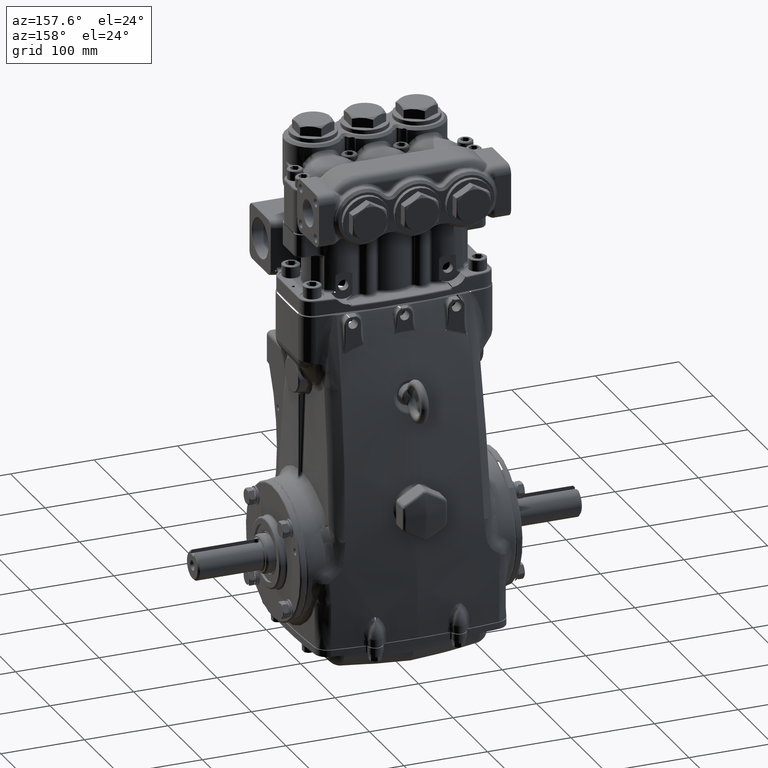
[diagram: clean part render]
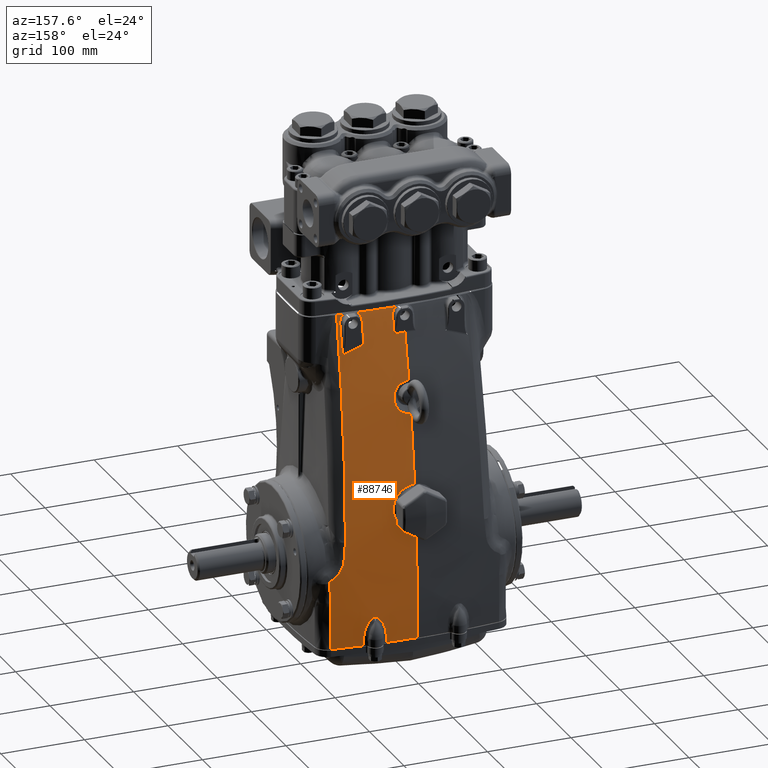
[diagram: same view with one face highlighted and labeled with its STEP entity id]
A machine part, auxiliary view. The second image highlights one B-rep face of the part: STEP entity #88746.
In plain terms, the highlighted face is a freeform B-spline surface patch.
Its self-contained STEP definition (entity closure, byte-faithful):
#37 = B_SPLINE_CURVE_WITH_KNOTS ( 'NONE', 3,
 ( #5524, #47830, #90093, #132361, #37446, #79716, #121972, #27038, #69283, #111548, #16634, #58911, #101161, #6208, #48499, #90765, #133052, #38127, #80406, #122643, #27722, #69962, #112230, #17318, #59582, #101828 ),
 .UNSPECIFIED., .F., .F.,
 ( 4, 2, 2, 2, 2, 2, 2, 2, 2, 2, 2, 2, 4 ),
 ( 0.0000000000000000000, 0.0009034963528193899664, 0.001806992705638779933, 0.003613985411277540784, 0.005420978116916302068, 0.007227970822555064220, 0.009034963528193825505, 0.01084195623383258505, 0.01445594164511011109, 0.01626293435074887411, 0.01806992705638763366, 0.02168391246766511460, 0.02891188329022006953 ),
 .UNSPECIFIED. ) ;
#116 = CARTESIAN_POINT ( 'NONE',  ( 0.3568954482566445430, 2.103047633739339339, 11.69630847844545229 ) ) ;
#455 = CARTESIAN_POINT ( 'NONE',  ( 2.617725878232745274, 1.978461066338805807, 11.77167648878057449 ) ) ;
#769 = CARTESIAN_POINT ( 'NONE',  ( 1.651241377271888577, 3.747397938625225411, -2.384462525471408245 ) ) ;
#856 = CARTESIAN_POINT ( 'NONE',  ( 1.984111132156669566, 3.727934984330343759, -2.137463051047669538 ) ) ;
#961 = CARTESIAN_POINT ( 'NONE',  ( 1.922123809367781933, 2.125464932124274675, 11.36836944636462121 ) ) ;
#1138 = CARTESIAN_POINT ( 'NONE',  ( 3.016919674220464476, 1.943007137088806457, 11.77165354330710478 ) ) ;
#1341 = CARTESIAN_POINT ( 'NONE',  ( 0.3755485810278967884, 3.037703822819315835, 7.074132315306829177 ) ) ;
#1467 = CARTESIAN_POINT ( 'NONE',  ( 1.939589167925357627, 3.730718792896203784, -2.138605117172201364 ) ) ;
#1682 = CARTESIAN_POINT ( 'NONE',  ( 3.226349643378954912, 3.363306529552681390, 3.257775733343591718 ) ) ;
#1821 = CARTESIAN_POINT ( 'NONE',  ( 3.550896890505610415, 3.579964127238663973, -3.464566929133851669 ) ) ;
#1964 = B_SPLINE_CURVE_WITH_KNOTS ( 'NONE', 3,
 ( #51297, #93562, #135839, #40905 ),
 .UNSPECIFIED., .F., .F.,
 ( 4, 4 ),
 ( -0.0006225538101460027741, 0.03551212282342592480 ),
 .UNSPECIFIED. ) ;
#2022 = CARTESIAN_POINT ( 'NONE',  ( 0.7163603307315447033, 2.955832995977534683, 7.534183236945378503 ) ) ;
#2506 = CARTESIAN_POINT ( 'NONE',  ( 3.910609380025737547, 3.533348648068823206, -3.618486580175578560 ) ) ;
#2705 = CARTESIAN_POINT ( 'NONE',  ( 0.6594638320486984062, 2.864168222148679277, 8.068666853094143221 ) ) ;
#2832 = EDGE_CURVE ( 'NONE', #127442, #60840, #1964, .T. ) ;
#3188 = CARTESIAN_POINT ( 'NONE',  ( 4.471409995120889214, 1.768528750177872144, 11.77166119179819681 ) ) ;
#3580 = CARTESIAN_POINT ( 'NONE',  ( 3.520116567744814517, 3.539435181202170710, 0.2121852385927017748 ) ) ;
#3593 = CARTESIAN_POINT ( 'NONE',  ( 3.995321426493382955, 3.511514303246130453, -0.5946901213386277529 ) ) ;
#3615 = CARTESIAN_POINT ( 'NONE',  ( 2.941019945781940148, 2.046648092384458995, 11.36797252524078239 ) ) ;
#3870 = CARTESIAN_POINT ( 'NONE',  ( 4.852819270003458030, 3.503779040536588507, 1.666088105590210811 ) ) ;
#4277 = CARTESIAN_POINT ( 'NONE',  ( 2.608830733332581531, 2.367219992948422558, 10.08390193469189811 ) ) ;
#4416 = CARTESIAN_POINT ( 'NONE',  ( 9.705473735494732134E-31, 2.366950722864918255, 10.57665827853426066 ) ) ;
#4508 = ORIENTED_EDGE ( 'NONE', *, *, #65112, .F. ) ;
#4536 = CARTESIAN_POINT ( 'NONE',  ( 5.167209544333353222, 3.351205553017578165, -3.567180029828329157 ) ) ;
#4607 = CARTESIAN_POINT ( 'NONE',  ( 3.269204732900450772, 3.494166244084205619, 1.549803905489431921 ) ) ;
#5132 = CARTESIAN_POINT ( 'NONE',  ( 0.3571054481389667745, 2.813026910735805242, 8.377751472312755965 ) ) ;
#5211 = CARTESIAN_POINT ( 'NONE',  ( 5.472957139144666527, 1.607457717938263864, 11.77166884028941496 ) ) ;
#5524 = CARTESIAN_POINT ( 'NONE',  ( 1.984111132156669566, 3.727934984330343759, -2.137463051047669538 ) ) ;
#5836 = CARTESIAN_POINT ( 'NONE',  ( 0.006556217088583293079, 2.800346000895803211, 8.457339784950899997 ) ) ;
#5895 = CARTESIAN_POINT ( 'NONE',  ( 0.08596830526876800271, 3.780183506395370152, -3.424427974852214618 ) ) ;
#5990 = CARTESIAN_POINT ( 'NONE',  ( 3.075277783650770314, 1.948537073337893721, 11.72103320572180429 ) ) ;
#6040 = CARTESIAN_POINT ( 'NONE',  ( 3.966949127469222347, 3.501669356983469150, -0.1877683356444751483 ) ) ;
#6048 = VERTEX_POINT ( 'NONE', #85707 ) ;
#6076 = CARTESIAN_POINT ( 'NONE',  ( -1.928577636452524757E-15, 3.779527559055117170, -3.464566929133858331 ) ) ;
#6095 = CARTESIAN_POINT ( 'NONE',  ( 0.5819280291078096079, 2.093704070973753772, 11.72108729985537146 ) ) ;
#6157 = VERTEX_POINT ( 'NONE', #28119 ) ;
#6208 = CARTESIAN_POINT ( 'NONE',  ( 2.271067985336105099, 3.708748354778688139, -2.365127835354815300 ) ) ;
#6302 = B_SPLINE_CURVE_WITH_KNOTS ( 'NONE', 3,
 ( #94825, #137100, #42150, #84434 ),
 .UNSPECIFIED., .F., .F.,
 ( 4, 4 ),
 ( 0.0000000000000000000, 0.01296155706718313781 ),
 .UNSPECIFIED. ) ;
#6572 = CARTESIAN_POINT ( 'NONE',  ( 1.320646138340188180, 3.752853252974094111, -3.424426759141142806 ) ) ;
#6757 = CARTESIAN_POINT ( 'NONE',  ( 0.09184632771057957279, 3.776525152449977885, -3.618486580175580780 ) ) ;
#6821 = CARTESIAN_POINT ( 'NONE',  ( 0.3357501053402199287, 3.648721705995646047, 1.755446086565721098 ) ) ;
#7052 = VERTEX_POINT ( 'NONE', #83882 ) ;
#7443 = CARTESIAN_POINT ( 'NONE',  ( 0.6073683219925143373, 2.081169930657294831, 11.77166119179829629 ) ) ;
#7508 = CARTESIAN_POINT ( 'NONE',  ( 0.9321466212259140738, 3.597806867510036088, 2.283147083127769150 ) ) ;
#8141 = CARTESIAN_POINT ( 'NONE',  ( 0.7729125040845628014, 3.870372719911775672, 1.666088105590241453 ) ) ;
#8203 = CARTESIAN_POINT ( 'NONE',  ( 1.011310082946488276, 3.536973429753559550, 2.978058720179383556 ) ) ;
#8814 = CARTESIAN_POINT ( 'NONE',  ( 0.9922770438982243535, 3.762205617985176609, -3.567180029828336263 ) ) ;
#8878 = CARTESIAN_POINT ( 'NONE',  ( 0.6862493136857781284, 3.494102272294836720, 3.523942007390577835 ) ) ;
#9498 = CARTESIAN_POINT ( 'NONE',  ( 1.587140535387032036, 2.046882848346886163, 11.77166884028941318 ) ) ;
#9562 = CARTESIAN_POINT ( 'NONE',  ( 7.279105301621049100E-31, 3.475299937072045431, 3.782957108726566098 ) ) ;
#10074 = CARTESIAN_POINT ( 'NONE',  ( 3.066176771644165910, 1.949429934523600805, 11.72103354203386694 ) ) ;
#10195 = CARTESIAN_POINT ( 'NONE',  ( 1.853946495142653861, 3.256623459385927788, 6.788105265077284400 ) ) ;
#10423 = EDGE_CURVE ( 'NONE', #40070, #130036, #36687, .T. ) ;
#10536 = CARTESIAN_POINT ( 'NONE',  ( 0.4284137728423498825, 2.123047663350722036, 11.61052198504221700 ) ) ;
#10876 = CARTESIAN_POINT ( 'NONE',  ( 2.146491763667625285, 3.706100310773567053, -3.515873479481095742 ) ) ;
#10950 = CARTESIAN_POINT ( 'NONE',  ( 1.922095920021692050, 2.367095942449277235, 10.31063246072288386 ) ) ;
#11190 = CARTESIAN_POINT ( 'NONE',  ( 1.561445849148193288, 3.751560799230096332, -2.547479701091002635 ) ) ;
#11245 = EDGE_CURVE ( 'NONE', #81699, #134208, #37, .T. ) ;
#11277 = CARTESIAN_POINT ( 'NONE',  ( 1.951495101333295068, 3.729976412463448909, -2.137463112498968254 ) ) ;
#11385 = CARTESIAN_POINT ( 'NONE',  ( 1.942924686370599341, 2.098294082319703158, 11.47660659340112055 ) ) ;
#11442 = CARTESIAN_POINT ( 'NONE',  ( 1.951495101333295068, 3.729976412463448909, -2.137463112498968254 ) ) ;
#11559 = CARTESIAN_POINT ( 'NONE',  ( 3.016919640314343454, 1.943001504886792796, 11.77167648878059758 ) ) ;
#11759 = CARTESIAN_POINT ( 'NONE',  ( 0.2459108933441835065, 3.048850915802357786, 7.012694156715981286 ) ) ;
#11873 = CARTESIAN_POINT ( 'NONE',  ( 1.894064700851531446, 3.733532004044151087, -2.152060852376258104 ) ) ;
#12090 = CARTESIAN_POINT ( 'NONE',  ( 3.269204732900450772, 3.494166244084205619, 1.549803905489431921 ) ) ;
#12235 = CARTESIAN_POINT ( 'NONE',  ( 3.480378942241151741, 1.894773315943172109, 11.77165354330708880 ) ) ;
#12444 = CARTESIAN_POINT ( 'NONE',  ( 0.6615934391653726099, 2.982063879924476968, 7.385060971766417737 ) ) ;
#12782 = CARTESIAN_POINT ( 'NONE',  ( 3.066112386415988933, 2.153713693125371531, 10.86498774305070469 ) ) ;
#12915 = CARTESIAN_POINT ( 'NONE',  ( 3.909663389791890431, 3.536467545462993467, -3.464566929133856110 ) ) ;
#13115 = CARTESIAN_POINT ( 'NONE',  ( 0.7228624627434075967, 2.892081966186095254, 7.903420746440565026 ) ) ;
#13190 = EDGE_CURVE ( 'NONE', #95163, #103386, #130131, .T. ) ;
#13611 = CARTESIAN_POINT ( 'NONE',  ( 4.271543492749502846, 3.486091687875209288, -3.618486580175591882 ) ) ;
#14001 = CARTESIAN_POINT ( 'NONE',  ( 3.647027291523595949, 3.531603023960265819, 0.04987067897304938574 ) ) ;
#14014 = CARTESIAN_POINT ( 'NONE',  ( 3.957781727276481476, 3.531041095253700135, -1.223694571038026702 ) ) ;
#14299 = CARTESIAN_POINT ( 'NONE',  ( 4.792045308734939724, 1.720271994413820726, 11.77166119179817905 ) ) ;
#14714 = CARTESIAN_POINT ( 'NONE',  ( 1.922095920021692050, 2.367095942449277235, 10.31063246072288386 ) ) ;
#14728 = CARTESIAN_POINT ( 'NONE',  ( 2.789180568853216524, 1.981359769075150101, 11.69621483026512543 ) ) ;
#14981 = CARTESIAN_POINT ( 'NONE',  ( 5.146563101109652649, 3.456735926573856421, 1.666088105590221469 ) ) ;
#14987 = EDGE_CURVE ( 'NONE', #73976, #105882, #68476, .T. ) ;
#15051 = CARTESIAN_POINT ( 'NONE',  ( 3.316175873532175800, 3.524352913421338940, 0.9735432736710527557 ) ) ;
#15126 = VERTEX_POINT ( 'NONE', #61943 ) ;
#15394 = ORIENTED_EDGE ( 'NONE', *, *, #21531, .F. ) ;
#15578 = CARTESIAN_POINT ( 'NONE',  ( 0.4254548970009650599, 2.819524118404024282, 8.337703002803939611 ) ) ;
#15660 = CARTESIAN_POINT ( 'NONE',  ( 5.341456586250219019, 3.321576627475916421, -3.567180029828339816 ) ) ;
#16252 = CARTESIAN_POINT ( 'NONE',  ( 0.03310760826585624345, 2.800436616640732179, 8.456760801675013539 ) ) ;
#16310 = CARTESIAN_POINT ( 'NONE',  ( 0.01866426497922715061, 3.780291642653942130, -3.424427992065139037 ) ) ;
#16397 = VERTEX_POINT ( 'NONE', #25845 ) ;
#16407 = CARTESIAN_POINT ( 'NONE',  ( 3.048361850561355890, 1.956657500317994680, 11.69856850100573276 ) ) ;
#16456 = CARTESIAN_POINT ( 'NONE',  ( 3.999693577117741317, 3.498425686486035247, -0.2138186364764404768 ) ) ;
#16497 = CARTESIAN_POINT ( 'NONE',  ( 5.245148147835386168E-15, 2.086614173228352520, 11.77165354330708702 ) ) ;
#16512 = CARTESIAN_POINT ( 'NONE',  ( 1.182649785452192015, 2.077085494791222064, 11.72108071220657521 ) ) ;
#16634 = CARTESIAN_POINT ( 'NONE',  ( 2.198105368913941593, 3.713949761585035869, -2.272979038656028461 ) ) ;
#16923 = B_SPLINE_CURVE_WITH_KNOTS ( 'NONE', 3,
 ( #67717, #109981, #15051, #57315, #99570, #4607 ),
 .UNSPECIFIED., .F., .F.,
 ( 4, 2, 4 ),
 ( 0.0000000000000000000, 0.01103432557004347184, 0.02206865114008694367 ),
 .UNSPECIFIED. ) ;
#16951 = B_SPLINE_CURVE_WITH_KNOTS ( 'NONE', 3,
 ( #132190, #37279, #79541, #121796, #26864, #69108, #111368, #16456, #58735, #100988, #6040, #48330 ),
 .UNSPECIFIED., .F., .F.,
 ( 4, 2, 2, 2, 2, 4 ),
 ( 0.0000000000000000000, 0.0004037022764436741908, 0.0008074045528873483816, 0.001614809105774696763, 0.002422213658662045362, 0.003229618211549393526 ),
 .UNSPECIFIED. ) ;
#16997 = CARTESIAN_POINT ( 'NONE',  ( 0.8142392989144296989, 3.770025519803677838, -3.424427220812389372 ) ) ;
#17180 = CARTESIAN_POINT ( 'NONE',  ( 0.09207796433345837028, 3.779527559055117170, -3.464566929133858331 ) ) ;
#17246 = CARTESIAN_POINT ( 'NONE',  ( 0.1371330742698348704, 3.653264855186496352, 1.710435820775985549 ) ) ;
#17318 = CARTESIAN_POINT ( 'NONE',  ( 2.474389933526435659, 3.690731535997991308, -2.881858389204126514 ) ) ;
#17854 = CARTESIAN_POINT ( 'NONE',  ( 0.2536578910174956403, 3.775828391058954292, -3.618486580175577672 ) ) ;
#17917 = CARTESIAN_POINT ( 'NONE',  ( 0.8266325770651331561, 3.614105567595518487, 2.109348480591136443 ) ) ;
#18511 = CARTESIAN_POINT ( 'NONE',  ( 2.761447172062921673, 1.977739828078834305, 11.72104414038030562 ) ) ;
#18516 = B_SPLINE_CURVE_WITH_KNOTS ( 'NONE', 3,
 ( #56311, #98577, #3615, #45933, #88194, #130455, #35559, #77814, #120063, #25126, #67393, #109646, #14728, #57000, #99258 ),
 .UNSPECIFIED., .F., .F.,
 ( 4, 2, 1, 2, 2, 2, 2, 4 ),
 ( 0.0000000000000000000, 0.001441368081631610922, 0.002882736163263221844, 0.004324104244894833200, 0.005765472326526443689, 0.008648208489789794770, 0.01008957657142146858, 0.01153094465305314412 ),
 .UNSPECIFIED. ) ;
#18546 = CARTESIAN_POINT ( 'NONE',  ( 0.8465838755881149869, 2.075548634242388779, 11.77166119179828030 ) ) ;
#18606 = CARTESIAN_POINT ( 'NONE',  ( 1.038121113958294428, 3.550987742800724600, 2.810288334301886959 ) ) ;
#18872 = VERTEX_POINT ( 'NONE', #21172 ) ;
#19240 = CARTESIAN_POINT ( 'NONE',  ( 1.033392015430271149, 3.862919049952886041, 1.666088105590231017 ) ) ;
#19305 = CARTESIAN_POINT ( 'NONE',  ( 0.8260164220419129455, 3.505240893802816338, 3.376403974158812105 ) ) ;
#19497 = B_SPLINE_CURVE_WITH_KNOTS ( 'NONE', 3,
 ( #27645, #69888, #112160, #17246, #59514, #101755, #6821, #49112, #91383, #133655, #38742, #81016, #123262, #28338, #70581, #112828, #17917, #60200, #102440, #7508, #49803, #92077, #134353, #39422, #81701, #123937, #29017, #71280, #113523, #18606, #60902, #103148, #8203, #50490, #92749, #135034, #40093, #82377, #124632, #29706, #71971, #114224, #19305, #61586, #103822, #8878, #51175, #93436, #135715, #40776, #83064, #125326, #30411, #72647, #114904, #19975, #62260, #104510, #9562 ),
 .UNSPECIFIED., .F., .F.,
 ( 4, 2, 2, 2, 2, 2, 2, 2, 2, 2, 2, 2, 2, 2, 2, 2, 2, 2, 1, 2, 2, 2, 2, 2, 2, 2, 2, 2, 2, 4 ),
 ( -5.999999999988171443E-08, 0.002617309362976217180, 0.005234678725952434004, 0.01046941745190486765, 0.01308678681488108231, 0.01570415617785730217, 0.01832152554083351856, 0.02093889490380973495, 0.02617363362976216426, 0.02879100299273837371, 0.03140837235571457969, 0.03664311108166697778, 0.03795179576315511200, 0.03926048044464323927, 0.04187784980761950077, 0.04711258853357207232, 0.04842127321506020654, 0.04972995789654833382, 0.05234732725952462307, 0.05496469662250090538, 0.05627338130398905347, 0.05758206598547720156, 0.06281680471142971067, 0.06543417407440597910, 0.06674285875589412720, 0.06805154343738227529, 0.07328628216333492318, 0.07590365152631124712, 0.07852102088928755719, 0.08375575961524020507 ),
 .UNSPECIFIED. ) ;
#19598 = EDGE_CURVE ( 'NONE', #130036, #33096, #128760, .T. ) ;
#19910 = CARTESIAN_POINT ( 'NONE',  ( 1.206874167794767194, 3.754724690457360570, -3.567180029828330490 ) ) ;
#19975 = CARTESIAN_POINT ( 'NONE',  ( 0.2361916591066537952, 3.477190926609281085, 3.756237194875698737 ) ) ;
#20579 = CARTESIAN_POINT ( 'NONE',  ( 0.5099476513739285011, 2.249991768609127085, 11.07376066516228796 ) ) ;
#20587 = CARTESIAN_POINT ( 'NONE',  ( 1.886664134870914555, 2.030794006280190356, 11.77166884028941318 ) ) ;
#20850 = VERTEX_POINT ( 'NONE', #136298 ) ;
#20939 = CARTESIAN_POINT ( 'NONE',  ( 0.4775450137061955647, 2.146354174145784111, 11.51111234678426776 ) ) ;
#21172 = CARTESIAN_POINT ( 'NONE',  ( 1.922122788353095135, 2.134331509641288704, 11.33102910461567525 ) ) ;
#21286 = CARTESIAN_POINT ( 'NONE',  ( 2.192517691082281672, 3.234782077177078996, 6.788105265077283512 ) ) ;
#21355 = CARTESIAN_POINT ( 'NONE',  ( 1.922122788353095135, 2.134331509641288704, 11.33102910461567525 ) ) ;
#21531 = EDGE_CURVE ( 'NONE', #16397, #100845, #134873, .T. ) ;
#21600 = CARTESIAN_POINT ( 'NONE',  ( 1.526172145244721667, 3.752883460819519179, -2.634286891848193868 ) ) ;
#21790 = CARTESIAN_POINT ( 'NONE',  ( 1.984895211281014316, 2.070927960838405912, 11.57929386269837835 ) ) ;
#21960 = CARTESIAN_POINT ( 'NONE',  ( 2.592469632888194653, 3.672636526991721162, -3.515873479481110842 ) ) ;
#22155 = CARTESIAN_POINT ( 'NONE',  ( 0.08966484943308102029, 3.055518208070054254, 6.976079235380416854 ) ) ;
#22274 = CARTESIAN_POINT ( 'NONE',  ( 1.805088076041678757, 3.738895607890095008, -2.207559827024686339 ) ) ;
#22390 = ORIENTED_EDGE ( 'NONE', *, *, #34459, .T. ) ;
#22641 = CARTESIAN_POINT ( 'NONE',  ( 3.480378834013866385, 1.894767692750219057, 11.77167648878058159 ) ) ;
#22833 = CARTESIAN_POINT ( 'NONE',  ( 0.5866270310992308668, 3.003605991276457665, 7.263837854307576336 ) ) ;
#23170 = CARTESIAN_POINT ( 'NONE',  ( 3.117120338754920006, 2.672174463103909048, 8.348257340075480926 ) ) ;
#23322 = CARTESIAN_POINT ( 'NONE',  ( 3.815064366407124652, 1.855203238539271826, 11.77165354330708880 ) ) ;
#23528 = CARTESIAN_POINT ( 'NONE',  ( 0.7397035643693123941, 2.916289227052626387, 7.762113618273943416 ) ) ;
#23623 = CARTESIAN_POINT ( 'NONE',  ( 3.956496635504541004, 3.544607097930561501, -2.690908510629250738 ) ) ;
#23953 = B_SPLINE_CURVE_WITH_KNOTS ( 'NONE', 3,
 ( #34832, #77089, #119342, #24402, #66668, #108923, #14001, #56273, #98536, #3580, #45897, #88159, #130423, #35518, #77777, #120025, #25087, #67355 ),
 .UNSPECIFIED., .F., .F.,
 ( 4, 2, 2, 2, 2, 2, 2, 2, 4 ),
 ( 0.0000000000000000000, 0.006990497734767574939, 0.008738122168459459133, 0.01048574660215134333, 0.01398099546953508222, 0.01747624433691882112, 0.02097149320430255481, 0.02446674207168629545, 0.02796199093907003261 ),
 .UNSPECIFIED. ) ;
#24006 = CARTESIAN_POINT ( 'NONE',  ( 4.270460663811117996, 3.489240027746113970, -3.464566929133868989 ) ) ;
#24178 = CARTESIAN_POINT ( 'NONE',  ( 2.485991824541025075, 3.684251757287082540, -3.305742822090556921 ) ) ;
#24402 = CARTESIAN_POINT ( 'NONE',  ( 3.712617404604568350, 3.526436404052130325, -0.01472180527129508809 ) ) ;
#24507 = CARTESIAN_POINT ( 'NONE',  ( 7.605944187338040869E-16, 3.812515687427703082, -1.713049435544660382 ) ) ;
#24697 = CARTESIAN_POINT ( 'NONE',  ( 4.582039247850270947, 3.442311696620030670, -3.618486580175603873 ) ) ;
#25087 = CARTESIAN_POINT ( 'NONE',  ( 3.357286280910636300, 3.537434917263858836, 0.6404082894666356385 ) ) ;
#25126 = CARTESIAN_POINT ( 'NONE',  ( 2.860721376650469328, 1.995845229152549249, 11.61028039293616132 ) ) ;
#25390 = CARTESIAN_POINT ( 'NONE',  ( 5.106079848036618074, 1.670502308164350191, 11.77166119179820036 ) ) ;
#25845 = CARTESIAN_POINT ( 'NONE',  ( 3.047974002438827767, 1.951203707326858439, 11.72103420910330307 ) ) ;
#25985 = CARTESIAN_POINT ( 'NONE',  ( 0.5278241253279284395, 2.832787909258157821, 8.256732517076569522 ) ) ;
#26071 = CARTESIAN_POINT ( 'NONE',  ( 5.330941517263692475, 3.425513843878341902, 1.666088105590230795 ) ) ;
#26217 = EDGE_CURVE ( 'NONE', #95163, #18872, #112345, .T. ) ;
#26432 = EDGE_CURVE ( 'NONE', #15126, #100240, #123896, .T. ) ;
#26654 = CARTESIAN_POINT ( 'NONE',  ( 0.1054857070894420074, 2.801254753152029320, 8.451541673629400009 ) ) ;
#26718 = CARTESIAN_POINT ( 'NONE',  ( 0.003580240475987215079, 3.780296833476090246, -3.424427992926413644 ) ) ;
#26738 = CARTESIAN_POINT ( 'NONE',  ( 5.472957139144666527, 3.298373256058383607, -3.567180029828340260 ) ) ;
#26864 = CARTESIAN_POINT ( 'NONE',  ( 4.022527034758161868, 3.496940846659434055, -0.2549454537783310548 ) ) ;
#26905 = CARTESIAN_POINT ( 'NONE',  ( 5.245154553062564334E-15, 2.086608538183193584, 11.77167648878057982 ) ) ;
#26923 = CARTESIAN_POINT ( 'NONE',  ( 1.716375957087106441, 2.052498921085579742, 11.72107166240338039 ) ) ;
#27038 = CARTESIAN_POINT ( 'NONE',  ( 2.130487266154514447, 3.718528088726727354, -2.207560004171498669 ) ) ;
#27384 = CARTESIAN_POINT ( 'NONE',  ( 0.4343154790150489664, 3.777366031335028573, -3.424427654907437280 ) ) ;
#27579 = CARTESIAN_POINT ( 'NONE',  ( 0.1152416266213332624, 2.086614173228352520, 11.77165354330708880 ) ) ;
#27645 = CARTESIAN_POINT ( 'NONE',  ( 0.0000000000000000000, 3.654130161681601319, 1.701892301469291491 ) ) ;
#27722 = CARTESIAN_POINT ( 'NONE',  ( 2.408966609891268984, 3.697616689206262297, -2.634289480555723539 ) ) ;
#28119 = CARTESIAN_POINT ( 'NONE',  ( 3.957781727276481476, 3.531041095253700135, -1.223694571038026702 ) ) ;
#28273 = CARTESIAN_POINT ( 'NONE',  ( 0.2542215708781392913, 3.778826883383619162, -3.464566929133854778 ) ) ;
#28338 = CARTESIAN_POINT ( 'NONE',  ( 0.6861488396963221215, 3.628416581824221776, 1.960845442851478770 ) ) ;
#28678 = CARTESIAN_POINT ( 'NONE',  ( 2.102795006353571416, 2.028751148172999397, 11.72106292052996857 ) ) ;
#28952 = CARTESIAN_POINT ( 'NONE',  ( 0.5140337625577412473, 3.772663664345201173, -3.618486580175573231 ) ) ;
#29017 = CARTESIAN_POINT ( 'NONE',  ( 1.031509617363517428, 3.567106530136070930, 2.623850643853792963 ) ) ;
#29649 = CARTESIAN_POINT ( 'NONE',  ( 1.114009668533421316, 2.067240440788547851, 11.77166119179824477 ) ) ;
#29706 = CARTESIAN_POINT ( 'NONE',  ( 0.8999946134492086136, 3.514186245791924623, 3.261333219806259898 ) ) ;
#30006 = EDGE_CURVE ( 'NONE', #64854, #50838, #125828, .T. ) ;
#30342 = CARTESIAN_POINT ( 'NONE',  ( 1.248211835035086592, 3.855137457873697659, 1.666088105590234125 ) ) ;
#30411 = CARTESIAN_POINT ( 'NONE',  ( 0.3670291315825974232, 3.480034944949883968, 3.716353844896888692 ) ) ;
#30465 = CARTESIAN_POINT ( 'NONE',  ( 2.856988886733764055, 1.969332119163633044, 11.72104101039461277 ) ) ;
#30595 = CARTESIAN_POINT ( 'NONE',  ( 3.957806744477383898, 3.530638751054765212, -3.424421330816489029 ) ) ;
#31001 = VERTEX_POINT ( 'NONE', #32913 ) ;
#31017 = CARTESIAN_POINT ( 'NONE',  ( 1.471930013320035924, 3.743418453583435390, -3.567180029828333154 ) ) ;
#31374 = CARTESIAN_POINT ( 'NONE',  ( 0.5049536381081852765, 2.171454191001705780, 11.40465261991973733 ) ) ;
#31701 = CARTESIAN_POINT ( 'NONE',  ( 2.215416232719626066, 2.009262782782168522, 11.77166884028940963 ) ) ;
#31735 = CARTESIAN_POINT ( 'NONE',  ( 0.0000000000000000000, 3.654130161681601319, 1.701892301469291491 ) ) ;
#32034 = CARTESIAN_POINT ( 'NONE',  ( 1.460401765533258844, 3.754212180687106493, -2.881855827106080348 ) ) ;
#32228 = CARTESIAN_POINT ( 'NONE',  ( 2.049716108370422951, 2.044848717037913044, 11.66951171389781550 ) ) ;
#32248 = CARTESIAN_POINT ( 'NONE',  ( 1.448827917767014251, 3.751064775926534978, -3.187050668098594386 ) ) ;
#32330 = VERTEX_POINT ( 'NONE', #51489 ) ;
#32398 = CARTESIAN_POINT ( 'NONE',  ( 2.609335073250302450, 3.203097206246929396, 6.788105265077278183 ) ) ;
#32599 = CARTESIAN_POINT ( 'NONE',  ( 0.03162639638780506690, 3.056384167853153588, 6.971330285472710386 ) ) ;
#32683 = CARTESIAN_POINT ( 'NONE',  ( 1.984111132156669566, 3.727934984330343759, -2.137463051047669538 ) ) ;
#32714 = CARTESIAN_POINT ( 'NONE',  ( 1.737426133053374011, 3.742785969842905125, -2.272978183218842485 ) ) ;
#32854 = CARTESIAN_POINT ( 'NONE',  ( -2.426368433873683033E-31, 2.800345999324967750, 8.457339793419727414 ) ) ;
#32913 = CARTESIAN_POINT ( 'NONE',  ( 4.024767326900356323, 3.497556249445210597, -0.2810403410606585051 ) ) ;
#33068 = CARTESIAN_POINT ( 'NONE',  ( 3.039085619148012007, 3.633061029409601073, -3.515873479481128605 ) ) ;
#33096 = VERTEX_POINT ( 'NONE', #129455 ) ;
#33264 = CARTESIAN_POINT ( 'NONE',  ( 0.4767192319095203135, 3.024395439915378514, 7.147874119973693929 ) ) ;
#33606 = CARTESIAN_POINT ( 'NONE',  ( 3.169077725909747123, 3.071167649471457040, 5.810104169129147955 ) ) ;
#33674 = EDGE_CURVE ( 'NONE', #7052, #6157, #108321, .T. ) ;
#33752 = CARTESIAN_POINT ( 'NONE',  ( 3.815064221221454943, 1.855197621372513872, 11.77167648878058159 ) ) ;
#33945 = CARTESIAN_POINT ( 'NONE',  ( 0.7380680610332420732, 2.934538389668454261, 7.656408144005571792 ) ) ;
#34429 = CARTESIAN_POINT ( 'NONE',  ( 4.162177769972608132, 1.810919968495875665, 11.77165354330707814 ) ) ;
#34459 = EDGE_CURVE ( 'NONE', #15126, #73976, #109797, .T. ) ;
#34641 = CARTESIAN_POINT ( 'NONE',  ( 0.5847385670287439385, 2.843997516679625637, 8.189249259980558193 ) ) ;
#34832 = CARTESIAN_POINT ( 'NONE',  ( 3.957575300856117639, 3.502685695250202347, -0.1830250696565230983 ) ) ;
#35113 = CARTESIAN_POINT ( 'NONE',  ( 4.580943909269144854, 3.445473805234652964, -3.464566929133880979 ) ) ;
#35122 = ORIENTED_EDGE ( 'NONE', *, *, #26217, .T. ) ;
#35518 = CARTESIAN_POINT ( 'NONE',  ( 3.401225199785841369, 3.541398924710303930, 0.4611027466014151477 ) ) ;
#35559 = CARTESIAN_POINT ( 'NONE',  ( 2.909796763776722806, 2.015373524481933742, 11.51074649501153147 ) ) ;
#35808 = CARTESIAN_POINT ( 'NONE',  ( 4.884117836039036931, 3.395809871824721160, -3.618486580175574563 ) ) ;
#36490 = CARTESIAN_POINT ( 'NONE',  ( 5.310323719115619845, 1.636156385515110445, 11.77166119179825188 ) ) ;
#36514 = CARTESIAN_POINT ( 'NONE',  ( 0.3291895582293558054, 2.097288294947158960, 11.72108940143261435 ) ) ;
#36570 = ORIENTED_EDGE ( 'NONE', *, *, #58492, .F. ) ;
#36687 = B_SPLINE_CURVE_WITH_KNOTS ( 'NONE', 3,
 ( #12090, #54369, #96646, #1682, #43984, #86260, #128516, #33606, #75854, #118103, #23170, #65456, #107702, #12782, #55045, #97313 ),
 .UNSPECIFIED., .F., .F.,
 ( 4, 2, 2, 2, 2, 2, 2, 4 ),
 ( 0.0000000000000000000, 0.03264243258107458329, 0.06528486516214915270, 0.09792729774322372904, 0.1305697303242982776, 0.1958545954864474858, 0.2284970280675220899, 0.2611394606485967218 ),
 .UNSPECIFIED. ) ;
#37086 = CARTESIAN_POINT ( 'NONE',  ( 0.2095221922085636901, 2.804270214625033564, 8.432433907178610966 ) ) ;
#37163 = CARTESIAN_POINT ( 'NONE',  ( 5.472957139144667416, 3.400455080633130844, 1.666088105590230795 ) ) ;
#37279 = CARTESIAN_POINT ( 'NONE',  ( 4.025192622172919954, 3.497319579811000612, -0.2757587623723024572 ) ) ;
#37335 = CARTESIAN_POINT ( 'NONE',  ( 2.102795006353571416, 2.028751148172999397, 11.72106292052996857 ) ) ;
#37446 = CARTESIAN_POINT ( 'NONE',  ( 2.041536747216510683, 3.724301690662265685, -2.152060709845910136 ) ) ;
#37804 = CARTESIAN_POINT ( 'NONE',  ( 0.2443178480618151682, 3.779365126413368081, -3.424427862009360446 ) ) ;
#37999 = CARTESIAN_POINT ( 'NONE',  ( 0.1152416621717195638, 2.086608538183193584, 11.77167648878058159 ) ) ;
#38017 = CARTESIAN_POINT ( 'NONE',  ( 0.3291895582293558054, 2.097288294947158960, 11.72108940143261435 ) ) ;
#38127 = CARTESIAN_POINT ( 'NONE',  ( 2.373803387733699477, 3.700704596208036712, -2.547482343565529828 ) ) ;
#38674 = CARTESIAN_POINT ( 'NONE',  ( 0.3105895569424969027, 2.085522069509412102, 11.77165354330704083 ) ) ;
#38742 = CARTESIAN_POINT ( 'NONE',  ( 0.5504903424137328471, 3.638348491730704293, 1.859588072616493282 ) ) ;
#39363 = CARTESIAN_POINT ( 'NONE',  ( 0.5149578666385256076, 3.775650418719477042, -3.464566929133850337 ) ) ;
#39422 = CARTESIAN_POINT ( 'NONE',  ( 1.021538932138479350, 3.573054311480178935, 2.556365884069527361 ) ) ;
#39527 = CARTESIAN_POINT ( 'NONE',  ( -2.730575176707549353E-15, 3.364668361119688811, 4.849011172016416182 ) ) ;
#39688 = ORIENTED_EDGE ( 'NONE', *, *, #47038, .T. ) ;
#40030 = CARTESIAN_POINT ( 'NONE',  ( 0.7349717768749606250, 3.768231822093953021, -3.618486580175579004 ) ) ;
#40070 = VERTEX_POINT ( 'NONE', #103565 ) ;
#40093 = CARTESIAN_POINT ( 'NONE',  ( 0.9610687023262580730, 3.523769423611802232, 3.140184059703249098 ) ) ;
#40121 = ORIENTED_EDGE ( 'NONE', *, *, #130419, .T. ) ;
#40717 = CARTESIAN_POINT ( 'NONE',  ( 1.329266146724833009, 2.058869309920938306, 11.77166119179824300 ) ) ;
#40776 = CARTESIAN_POINT ( 'NONE',  ( 0.5917451397945919789, 3.488658221077960420, 3.597535458934494557 ) ) ;
#40905 = CARTESIAN_POINT ( 'NONE',  ( 2.942018870098606520, 2.055321169199334275, 11.33109302986570199 ) ) ;
#40976 = CARTESIAN_POINT ( 'NONE',  ( 2.977875315138635681, 3.640172050401968118, -3.424424688606591882 ) ) ;
#41412 = CARTESIAN_POINT ( 'NONE',  ( 1.510842136852395434, 3.843602111723632309, 1.666088105590234569 ) ) ;
#41744 = CARTESIAN_POINT ( 'NONE',  ( 0.5099501571128493005, 2.188913224549490444, 11.33098419473857987 ) ) ;
#42080 = CARTESIAN_POINT ( 'NONE',  ( 1.787857065752813002, 3.727583758897499600, -3.567180029828340260 ) ) ;
#42150 = CARTESIAN_POINT ( 'NONE',  ( 0.3402254847084953959, 2.366954046111033882, 10.57045866532416234 ) ) ;
#42430 = CARTESIAN_POINT ( 'NONE',  ( 0.3433688776963090827, 2.100076676435944201, 11.70908572002509374 ) ) ;
#42587 = CARTESIAN_POINT ( 'NONE',  ( 2.102795006353571416, 2.028751148172999397, 11.72106292052996857 ) ) ;
#42628 = ORIENTED_EDGE ( 'NONE', *, *, #13190, .F. ) ;
#42756 = CARTESIAN_POINT ( 'NONE',  ( 2.617725865355033044, 1.978462945838119769, 11.77166884028940963 ) ) ;
#42963 = CARTESIAN_POINT ( 'NONE',  ( 0.004456384663609157075, 3.056492043561971794, 6.970738724742552073 ) ) ;
#43082 = CARTESIAN_POINT ( 'NONE',  ( 1.664383042843607496, 3.746725921643389690, -2.365125869348112975 ) ) ;
#43202 = ORIENTED_EDGE ( 'NONE', *, *, #136205, .F. ) ;
#43264 = EDGE_CURVE ( 'NONE', #31001, #32330, #16951, .T. ) ;
#43269 = CARTESIAN_POINT ( 'NONE',  ( 1.922122788353095135, 2.134331509641288704, 11.33102910461567525 ) ) ;
#43444 = CARTESIAN_POINT ( 'NONE',  ( 3.024283775525298701, 3.166270219949427034, 6.788105265077287953 ) ) ;
#43647 = CARTESIAN_POINT ( 'NONE',  ( 0.4200475372028452115, 3.032338896872305511, 7.103818357967789154 ) ) ;
#43769 = CARTESIAN_POINT ( 'NONE',  ( 1.951495101333295068, 3.729976412463448909, -2.137463112498968254 ) ) ;
#43984 = CARTESIAN_POINT ( 'NONE',  ( 3.216296056407198733, 3.322383220422969519, 3.684119343499719257 ) ) ;
#44118 = CARTESIAN_POINT ( 'NONE',  ( 3.551131950333158649, 3.578937583121846178, -3.515873479481092634 ) ) ;
#44321 = CARTESIAN_POINT ( 'NONE',  ( 0.7206146849942330901, 2.952796480231095977, 7.551548676411417915 ) ) ;
#44807 = CARTESIAN_POINT ( 'NONE',  ( 4.162177603785644386, 1.810914355847796475, 11.77167648878057093 ) ) ;
#45005 = CARTESIAN_POINT ( 'NONE',  ( 0.6426989868568169229, 2.858878596345433287, 8.100184576930310243 ) ) ;
#45490 = CARTESIAN_POINT ( 'NONE',  ( 4.471410051156515131, 1.768530620356180139, 11.77165354330703195 ) ) ;
#45897 = CARTESIAN_POINT ( 'NONE',  ( 3.495909033482428097, 3.540436192077720978, 0.2518544903901716592 ) ) ;
#45911 = CARTESIAN_POINT ( 'NONE',  ( 4.012125609158470496, 3.504591151798397863, -0.4380329796275670429 ) ) ;
#45933 = CARTESIAN_POINT ( 'NONE',  ( 2.937063316127539903, 2.038311024488808521, 11.40448764478979804 ) ) ;
#46179 = CARTESIAN_POINT ( 'NONE',  ( 4.883206227319553783, 3.398954604893998255, -3.464566929133852113 ) ) ;
#46595 = CARTESIAN_POINT ( 'NONE',  ( 2.776578712294497375, 2.367256534400909995, 10.01647498643020384 ) ) ;
#46738 = CARTESIAN_POINT ( 'NONE',  ( -4.676268508085532431E-15, 2.524408473620680660, 9.872633431383063041 ) ) ;
#46859 = CARTESIAN_POINT ( 'NONE',  ( 5.167411960443389241, 3.350170941512124134, -3.618486580175569678 ) ) ;
#47038 = EDGE_CURVE ( 'NONE', #18872, #114446, #126209, .T. ) ;
#47141 = CARTESIAN_POINT ( 'NONE',  ( 1.449436370701254084, 3.752553886590621168, -3.068352961861494865 ) ) ;
#47452 = CARTESIAN_POINT ( 'NONE',  ( 0.3334209507436446951, 2.811199870582222538, 8.389089765819207400 ) ) ;
#47528 = CARTESIAN_POINT ( 'NONE',  ( 5.472957139144666527, 1.607459596286650250, 11.77166119179825188 ) ) ;
#47830 = CARTESIAN_POINT ( 'NONE',  ( 1.996016727116062484, 3.727187006497952204, -2.138605013861039073 ) ) ;
#48132 = CARTESIAN_POINT ( 'NONE',  ( -2.426368433873683033E-31, 2.800345999324967750, 8.457339793419727414 ) ) ;
#48144 = ORIENTED_EDGE ( 'NONE', *, *, #10423, .F. ) ;
#48192 = CARTESIAN_POINT ( 'NONE',  ( 0.1018040044832867475, 3.780136294646871953, -3.424427967578548060 ) ) ;
#48284 = VERTEX_POINT ( 'NONE', #65110 ) ;
#48330 = CARTESIAN_POINT ( 'NONE',  ( 3.957575300856117639, 3.502685695250202347, -0.1830250696565230983 ) ) ;
#48366 = CARTESIAN_POINT ( 'NONE',  ( -1.962849182129397175E-15, 3.778526756853404223, -3.515873479481098851 ) ) ;
#48387 = CARTESIAN_POINT ( 'NONE',  ( 0.5151641289255387557, 2.094866612995622379, 11.72108779396292988 ) ) ;
#48468 = B_SPLINE_CURVE_WITH_KNOTS ( 'NONE', 3,
 ( #11277, #53559, #95830, #856 ),
 .UNSPECIFIED., .F., .F.,
 ( 4, 4 ),
 ( 0.0000000000000000000, 0.0008310209194798113229 ),
 .UNSPECIFIED. ) ;
#48499 = CARTESIAN_POINT ( 'NONE',  ( 2.284190644097326750, 3.707775836355402976, -2.384464635550700429 ) ) ;
#48861 = CARTESIAN_POINT ( 'NONE',  ( 1.447214697635420100, 3.747031218138626496, -3.424426838814072394 ) ) ;
#49054 = CARTESIAN_POINT ( 'NONE',  ( 0.3105896434531554839, 2.085516433863509711, 11.77167648878053363 ) ) ;
#49112 = CARTESIAN_POINT ( 'NONE',  ( 0.4302525351139428467, 3.644779811184174267, 1.794853527570635876 ) ) ;
#49732 = CARTESIAN_POINT ( 'NONE',  ( 0.6073682747169487639, 2.081171809806422246, 11.77165354330713321 ) ) ;
#49803 = CARTESIAN_POINT ( 'NONE',  ( 0.9467756070098002352, 3.594931152520063566, 2.314270772308697488 ) ) ;
#50427 = CARTESIAN_POINT ( 'NONE',  ( 0.7360768465995122245, 3.771206799700297374, -3.464566929133856554 ) ) ;
#50490 = CARTESIAN_POINT ( 'NONE',  ( 1.003045876490069377, 3.534246040823792789, 3.011214165409622279 ) ) ;
#50838 = VERTEX_POINT ( 'NONE', #77192 ) ;
#51110 = CARTESIAN_POINT ( 'NONE',  ( 0.9918739559420277629, 3.761218231397257750, -3.618486580175576783 ) ) ;
#51175 = CARTESIAN_POINT ( 'NONE',  ( 0.6466017690279757257, 3.491673699298003974, 3.556656959635872362 ) ) ;
#51297 = CARTESIAN_POINT ( 'NONE',  ( 2.941961549965390166, 2.367296412994850829, 9.943150386838313537 ) ) ;
#51489 = CARTESIAN_POINT ( 'NONE',  ( 3.957575300856117639, 3.502685695250202347, -0.1830250696565230983 ) ) ;
#51517 = ORIENTED_EDGE ( 'NONE', *, *, #61179, .T. ) ;
#51795 = CARTESIAN_POINT ( 'NONE',  ( 1.587140476837711534, 2.046884729551357918, 11.77166119179824832 ) ) ;
#52370 = CARTESIAN_POINT ( 'NONE',  ( 3.057075495170156199, 1.950318810983594275, 11.72103387650828310 ) ) ;
#52491 = CARTESIAN_POINT ( 'NONE',  ( 1.821228955840753061, 3.827681579267863121, 1.666088105590229684 ) ) ;
#52639 = ORIENTED_EDGE ( 'NONE', *, *, #128125, .T. ) ;
#52822 = CARTESIAN_POINT ( 'NONE',  ( 0.3947826122579397023, 2.112704777342991669, 11.65484239511345876 ) ) ;
#53153 = CARTESIAN_POINT ( 'NONE',  ( 2.146262778954119543, 3.705115858015877173, -3.567180029828336707 ) ) ;
#53474 = CARTESIAN_POINT ( 'NONE',  ( 1.591435406518097340, 3.750290718562261372, -2.484349065609401830 ) ) ;
#53559 = CARTESIAN_POINT ( 'NONE',  ( 1.962342473854572944, 3.729300037346045649, -2.136422643878229000 ) ) ;
#53661 = CARTESIAN_POINT ( 'NONE',  ( 1.938005146175445281, 2.102862889945013691, 11.45883148275509278 ) ) ;
#53666 = CARTESIAN_POINT ( 'NONE',  ( 0.5618534641297614485, 2.839490171766255067, 8.216384047504590171 ) ) ;
#53830 = CARTESIAN_POINT ( 'NONE',  ( 3.016919651616383646, 1.943003382287464165, 11.77166884028943272 ) ) ;
#54033 = CARTESIAN_POINT ( 'NONE',  ( 0.2798731182599345502, 3.046459260828721316, 7.025849307034176761 ) ) ;
#54160 = CARTESIAN_POINT ( 'NONE',  ( 1.905253571292879533, 3.732844040369280858, -2.147670171268756256 ) ) ;
#54369 = CARTESIAN_POINT ( 'NONE',  ( 3.257994996955968503, 3.467318692098095845, 1.977233875776326810 ) ) ;
#54514 = CARTESIAN_POINT ( 'NONE',  ( 3.503884924995972039, 3.116079712710064786, 6.788105265077288841 ) ) ;
#54714 = CARTESIAN_POINT ( 'NONE',  ( 0.6899832807443878613, 2.970651572174605626, 7.449726362109731603 ) ) ;
#55045 = CARTESIAN_POINT ( 'NONE',  ( 3.057369498427757737, 2.057451332273736444, 11.28228488240600136 ) ) ;
#55179 = CARTESIAN_POINT ( 'NONE',  ( 3.909978719869839470, 3.535427912998270195, -3.515873479481096631 ) ) ;
#55396 = CARTESIAN_POINT ( 'NONE',  ( 0.7034700128075387360, 2.880581387444483887, 7.971202912171843735 ) ) ;
#55505 = VERTEX_POINT ( 'NONE', #47141 ) ;
#55760 = B_SPLINE_CURVE_WITH_KNOTS ( 'NONE', 3,
 ( #105028, #10074, #52370, #94646 ),
 .UNSPECIFIED., .F., .F.,
 ( 4, 4 ),
 ( 0.0000000000000000000, 1.000000000000000000 ),
 .UNSPECIFIED. ) ;
#55883 = CARTESIAN_POINT ( 'NONE',  ( 4.471409883049637379, 1.768525009821256377, 11.77167648878052475 ) ) ;
#56112 = CARTESIAN_POINT ( 'NONE',  ( 2.942018870098606520, 2.055321169199334275, 11.33109302986570199 ) ) ;
#56273 = CARTESIAN_POINT ( 'NONE',  ( 3.601131524009420826, 3.534870486586991323, 0.1009905085611668973 ) ) ;
#56282 = B_SPLINE_CURVE_WITH_KNOTS ( 'NONE', 3,
 ( #84895, #127147, #32248, #74485 ),
 .UNSPECIFIED., .F., .F.,
 ( 4, 4 ),
 ( 0.001019701756819855511, 0.01006524144787350819 ),
 .UNSPECIFIED. ) ;
#56288 = CARTESIAN_POINT ( 'NONE',  ( 3.958060253309640064, 3.528091304124755911, -1.065759574945015498 ) ) ;
#56311 = CARTESIAN_POINT ( 'NONE',  ( 2.942018870098606520, 2.055321169199334275, 11.33109302986570199 ) ) ;
#56563 = EDGE_CURVE ( 'NONE', #50838, #55505, #56282, .T. ) ;
#56575 = CARTESIAN_POINT ( 'NONE',  ( 4.792045355371264748, 1.720273865481031450, 11.77165354330701419 ) ) ;
#56985 = CARTESIAN_POINT ( 'NONE',  ( 2.096309718821030899, 2.367122706321125758, 10.26185737745098692 ) ) ;
#57000 = CARTESIAN_POINT ( 'NONE',  ( 2.775637318178765689, 1.979432619919547109, 11.70901995671139595 ) ) ;
#57203 = B_SPLINE_CURVE_WITH_KNOTS ( 'NONE', 3,
 ( #76872, #119118, #24178, #66438 ),
 .UNSPECIFIED., .F., .F.,
 ( 4, 4 ),
 ( 0.0000000000000000000, 0.009045472075510164675 ),
 .UNSPECIFIED. ) ;
#57245 = CARTESIAN_POINT ( 'NONE',  ( 5.166804712113282072, 3.353274776028486226, -3.464566929133847228 ) ) ;
#57315 = CARTESIAN_POINT ( 'NONE',  ( 3.285140023969417289, 3.510887348803120034, 1.261192525168034040 ) ) ;
#57845 = CARTESIAN_POINT ( 'NONE',  ( 0.4031742777691404434, 2.817228727787468134, 8.351817005037553088 ) ) ;
#57921 = CARTESIAN_POINT ( 'NONE',  ( 5.341559675161851040, 3.320557635158245535, -3.618486580175580780 ) ) ;
#58492 = EDGE_CURVE ( 'NONE', #6048, #40070, #16923, .T. ) ;
#58523 = CARTESIAN_POINT ( 'NONE',  ( 0.02649784136558758565, 2.800402659177489983, 8.456977757622452074 ) ) ;
#58581 = CARTESIAN_POINT ( 'NONE',  ( 0.03846147198040698184, 3.780277157642622843, -3.424427989681956941 ) ) ;
#58684 = CARTESIAN_POINT ( 'NONE',  ( 3.056714633409059800, 1.953847332546420956, 11.70674875285134853 ) ) ;
#58735 = CARTESIAN_POINT ( 'NONE',  ( 3.992174508698265178, 3.499121618092366326, -0.2063480383189231493 ) ) ;
#58774 = CARTESIAN_POINT ( 'NONE',  ( 3.853991025291895839E-15, 3.310494761505669459, 6.788105265077287065 ) ) ;
#58792 = CARTESIAN_POINT ( 'NONE',  ( 0.9157032318170638119, 2.085982717345006954, 11.72108410469878592 ) ) ;
#58911 = CARTESIAN_POINT ( 'NONE',  ( 2.228721276398926587, 3.711805618293231301, -2.308693809652148765 ) ) ;
#59277 = CARTESIAN_POINT ( 'NONE',  ( 0.9408573345663645560, 3.766495515055890309, -3.424427083719387532 ) ) ;
#59454 = CARTESIAN_POINT ( 'NONE',  ( 0.09200075212583211370, 3.778526756853404223, -3.515873479481098851 ) ) ;
#59514 = CARTESIAN_POINT ( 'NONE',  ( 0.1709470524328088326, 3.652749009607986874, 1.715532760595537054 ) ) ;
#59582 = CARTESIAN_POINT ( 'NONE',  ( 2.484731854132021578, 3.688951047317098997, -2.974232571966362038 ) ) ;
#60141 = CARTESIAN_POINT ( 'NONE',  ( 0.6073684165436453730, 2.081166172359040001, 11.77167648878062600 ) ) ;
#60200 = CARTESIAN_POINT ( 'NONE',  ( 0.8827746331901759058, 3.606135510382342702, 2.193847204281599517 ) ) ;
#60249 = ORIENTED_EDGE ( 'NONE', *, *, #19598, .F. ) ;
#60280 = ORIENTED_EDGE ( 'NONE', *, *, #98617, .F. ) ;
#60833 = CARTESIAN_POINT ( 'NONE',  ( 0.8465838190546602915, 2.075550513993995150, 11.77165354330711544 ) ) ;
#60840 = VERTEX_POINT ( 'NONE', #56112 ) ;
#60902 = CARTESIAN_POINT ( 'NONE',  ( 1.031587060769977304, 3.545303762262257408, 2.877604171437786462 ) ) ;
#61179 = EDGE_CURVE ( 'NONE', #20850, #112373, #6302, .T. ) ;
#61443 = B_SPLINE_CURVE_WITH_KNOTS ( 'NONE', 3,
 ( #84688, #126937, #32034, #74263, #116534, #21600, #63864, #106125, #11190, #53474, #95748, #769, #43082, #85383, #127623, #32714, #74952, #117201, #22274, #64550, #106801, #11873, #54160, #96432, #1467, #43769 ),
 .UNSPECIFIED., .F., .F.,
 ( 4, 2, 2, 2, 2, 2, 2, 2, 2, 2, 2, 2, 4 ),
 ( 1.387778780781445521E-17, 0.007071297604193001012, 0.01060694640628949414, 0.01237477080733773854, 0.01414259520838598294, 0.01767824401048250643, 0.01944606841153077859, 0.02121389281257905074, 0.02298171721362732289, 0.02474954161467559505, 0.02651736601572386720, 0.02740127821624800328, 0.02828519041677213935 ),
 .UNSPECIFIED. ) ;
#61522 = CARTESIAN_POINT ( 'NONE',  ( 0.9930832198106175346, 3.764180391161014327, -3.464566929133854334 ) ) ;
#61586 = CARTESIAN_POINT ( 'NONE',  ( 0.7831269239197775622, 3.501243735450998429, 3.428860972643069882 ) ) ;
#61774 = CARTESIAN_POINT ( 'NONE',  ( 2.486580493105264633, 3.681970697799852310, -3.424426890099034004 ) ) ;
#61943 = CARTESIAN_POINT ( 'NONE',  ( 2.426368433873683033E-31, 3.056492047846547155, 6.970738720449814352 ) ) ;
#62002 = B_SPLINE_CURVE_WITH_KNOTS ( 'NONE', 3,
 ( #14014, #56288, #98552, #3593, #45911, #88171 ),
 .UNSPECIFIED., .F., .F.,
 ( 4, 2, 4 ),
 ( 0.0000000000000000000, 0.01200916825509858003, 0.02401833651019716007 ),
 .UNSPECIFIED. ) ;
#62070 = ORIENTED_EDGE ( 'NONE', *, *, #43264, .F. ) ;
#62197 = CARTESIAN_POINT ( 'NONE',  ( 1.206468896547313152, 3.753740251561121788, -3.618486580175571454 ) ) ;
#62260 = CARTESIAN_POINT ( 'NONE',  ( 0.1364188881467413017, 3.475777715168073101, 3.776171193961388450 ) ) ;
#62862 = CARTESIAN_POINT ( 'NONE',  ( 0.5099501571128493005, 2.188913224549490444, 11.33098419473857987 ) ) ;
#62873 = CARTESIAN_POINT ( 'NONE',  ( 1.886664084657733831, 2.030795887613818351, 11.77166119179824832 ) ) ;
#63221 = CARTESIAN_POINT ( 'NONE',  ( 0.4706595538336639239, 2.142276307189520335, 11.52846905538182298 ) ) ;
#63558 = CARTESIAN_POINT ( 'NONE',  ( 2.169619219731707016, 3.805530039300215606, 1.666088105590230795 ) ) ;
#63631 = CARTESIAN_POINT ( 'NONE',  ( 1.922113506892764168, 2.214932492923326279, 10.99158942168536335 ) ) ;
#63864 = CARTESIAN_POINT ( 'NONE',  ( 1.534418557058879973, 3.752598277941745941, -2.612217935328981611 ) ) ;
#63973 = B_SPLINE_CURVE_WITH_KNOTS ( 'NONE', 3,
 ( #41744, #84024, #126279, #31374, #73603, #115867, #20939, #63221, #105484, #10536, #52822, #95095, #116, #42430, #84713 ),
 .UNSPECIFIED., .F., .F.,
 ( 4, 2, 1, 2, 2, 2, 2, 4 ),
 ( 0.0000000000000000000, 0.001450647595035343268, 0.002901295190070686536, 0.004351942785106029804, 0.005802590380141373072, 0.008703885570212059608, 0.01015453316524739941, 0.01160518076028274094 ),
 .UNSPECIFIED. ) ;
#64061 = CARTESIAN_POINT ( 'NONE',  ( 1.961667322955362724, 2.084500302008454931, 11.52909839401668535 ) ) ;
#64231 = CARTESIAN_POINT ( 'NONE',  ( 2.592385725224701787, 3.671643223921336574, -3.567180029828351806 ) ) ;
#64404 = ORIENTED_EDGE ( 'NONE', *, *, #133945, .F. ) ;
#64434 = CARTESIAN_POINT ( 'NONE',  ( 0.1425666951795569459, 3.054076932072221418, 6.983986189979732195 ) ) ;
#64550 = CARTESIAN_POINT ( 'NONE',  ( 1.842440528049328119, 3.736673048132054031, -2.179665153472023942 ) ) ;
#64854 = VERTEX_POINT ( 'NONE', #80694 ) ;
#64864 = B_SPLINE_CURVE_WITH_KNOTS ( 'NONE', 3,
 ( #14714, #56985, #99246, #4277, #46595, #88861 ),
 .UNSPECIFIED., .F., .F.,
 ( 4, 2, 4 ),
 ( 0.0000000000000000000, 0.01377649459789080308, 0.02755298919578160616 ),
 .UNSPECIFIED. ) ;
#64899 = CARTESIAN_POINT ( 'NONE',  ( 3.480378870089628318, 1.894769567147870148, 11.77166884028941851 ) ) ;
#65110 = CARTESIAN_POINT ( 'NONE',  ( 2.486580493105264633, 3.681970697799852310, -3.424426890099034004 ) ) ;
#65112 = EDGE_CURVE ( 'NONE', #48284, #7052, #104578, .T. ) ;
#65114 = CARTESIAN_POINT ( 'NONE',  ( 0.6074300611338609990, 2.998464660312248231, 7.292667734409299385 ) ) ;
#65456 = CARTESIAN_POINT ( 'NONE',  ( 3.091790677973859314, 2.424351262851354605, 9.608981028187290718 ) ) ;
#65597 = CARTESIAN_POINT ( 'NONE',  ( 3.846597374202047170, 3.075200800515574873, 6.788105265077287953 ) ) ;
#65806 = CARTESIAN_POINT ( 'NONE',  ( 0.7371956410255970926, 2.910208371908691305, 7.797512150901630079 ) ) ;
#65898 = CARTESIAN_POINT ( 'NONE',  ( 3.956488121064076324, 3.544741315970752815, -1.957219153233058506 ) ) ;
#66271 = CARTESIAN_POINT ( 'NONE',  ( 4.270821606790579317, 3.488190581122478928, -3.515873479481109953 ) ) ;
#66438 = CARTESIAN_POINT ( 'NONE',  ( 2.486580493105264633, 3.681970697799852310, -3.424426890099034004 ) ) ;
#66668 = CARTESIAN_POINT ( 'NONE',  ( 3.695634013244609495, 3.527833446340042034, 0.001003933168903212853 ) ) ;
#66776 = CARTESIAN_POINT ( 'NONE',  ( 1.901787320747102331E-15, 3.780296879149135147, -3.424427673772763914 ) ) ;
#66961 = CARTESIAN_POINT ( 'NONE',  ( 4.792045215462290564, 1.720268252279398835, 11.77167648878050876 ) ) ;
#67355 = CARTESIAN_POINT ( 'NONE',  ( 3.351908329817678833, 3.535673982351944744, 0.6863570147038513536 ) ) ;
#67393 = CARTESIAN_POINT ( 'NONE',  ( 2.827099671641285283, 1.988096849904701369, 11.65465880862067394 ) ) ;
#67652 = CARTESIAN_POINT ( 'NONE',  ( 5.106079879102392027, 1.670504181323860138, 11.77165354330703551 ) ) ;
#67717 = CARTESIAN_POINT ( 'NONE',  ( 3.351908329817678833, 3.535673982351944744, 0.6863570147038513536 ) ) ;
#67782 = VERTEX_POINT ( 'NONE', #31735 ) ;
#68037 = VERTEX_POINT ( 'NONE', #124277 ) ;
#68236 = CARTESIAN_POINT ( 'NONE',  ( 0.4894363958340310905, 2.826974963259975215, 8.292067755253222927 ) ) ;
#68312 = CARTESIAN_POINT ( 'NONE',  ( 5.341250408426953200, 3.323614612111258193, -3.464566929133858331 ) ) ;
#68476 = B_SPLINE_CURVE_WITH_KNOTS ( 'NONE', 3,
 ( #120919, #25985, #68236, #110499, #15578, #57845, #100093, #5132, #47452, #89718, #131991, #37086, #79340, #121587, #26654, #68906, #111162, #16252, #58523, #100781, #5836, #48132 ),
 .UNSPECIFIED., .F., .F.,
 ( 4, 2, 2, 2, 2, 2, 2, 2, 2, 2, 4 ),
 ( 0.0000000000000000000, 0.003996669937201158262, 0.004995837421501486859, 0.005995004905801814589, 0.007993339874402477854, 0.009991674843003140252, 0.01199000981160380265, 0.01398834478020446505, 0.01498751226450479104, 0.01548709600665495664, 0.01598667974880511877 ),
 .UNSPECIFIED. ) ;
#68887 = ORIENTED_EDGE ( 'NONE', *, *, #33674, .F. ) ;
#68906 = CARTESIAN_POINT ( 'NONE',  ( 0.06608084062435326533, 2.800708316618456539, 8.455025747844617356 ) ) ;
#68963 = CARTESIAN_POINT ( 'NONE',  ( 0.007164389041385496766, 3.780296267402503130, -3.424427992831557077 ) ) ;
#68986 = CARTESIAN_POINT ( 'NONE',  ( 5.472957139144666527, 3.297372453856670660, -3.618486580175581224 ) ) ;
#69108 = CARTESIAN_POINT ( 'NONE',  ( 4.017520617434933605, 3.497059505317804184, -0.2399026279863140931 ) ) ;
#69148 = CARTESIAN_POINT ( 'NONE',  ( 5.245152417986838805E-15, 2.086610416531579748, 11.77166884028941496 ) ) ;
#69166 = CARTESIAN_POINT ( 'NONE',  ( 1.582965544775467137, 2.059494654824524762, 11.72107419104107784 ) ) ;
#69283 = CARTESIAN_POINT ( 'NONE',  ( 2.148204978621983674, 3.717346947805804547, -2.222994521279234803 ) ) ;
#69641 = CARTESIAN_POINT ( 'NONE',  ( 0.5609662830216213258, 3.775364835587625034, -3.424427507711116370 ) ) ;
#69825 = CARTESIAN_POINT ( 'NONE',  ( 0.1075204058587092976, 3.310494761505669459, 6.788105265077287953 ) ) ;
#69888 = CARTESIAN_POINT ( 'NONE',  ( 0.03434867930412897896, 3.654130159005333223, 1.701892340744444398 ) ) ;
#69962 = CARTESIAN_POINT ( 'NONE',  ( 2.431678934396354297, 3.695480065410873038, -2.700957734191270720 ) ) ;
#70521 = CARTESIAN_POINT ( 'NONE',  ( 0.2540336775912581113, 3.777827385942064353, -3.515873479481095742 ) ) ;
#70581 = CARTESIAN_POINT ( 'NONE',  ( 0.7114140796568098057, 3.626179280044382391, 1.983863787524302369 ) ) ;
#70622 = ORIENTED_EDGE ( 'NONE', *, *, #94010, .F. ) ;
#71215 = CARTESIAN_POINT ( 'NONE',  ( 0.8465839886550242666, 2.075544874739176038, 11.77167648878060824 ) ) ;
#71280 = CARTESIAN_POINT ( 'NONE',  ( 1.036502736595741547, 3.562647748410305848, 2.674868530896328700 ) ) ;
#71906 = CARTESIAN_POINT ( 'NONE',  ( 1.114009606669574381, 2.067242321195892796, 11.77165354330707991 ) ) ;
#71971 = CARTESIAN_POINT ( 'NONE',  ( 0.8824905872282758912, 3.511890274091833852, 3.290704624653680632 ) ) ;
#72535 = ORIENTED_EDGE ( 'NONE', *, *, #109330, .T. ) ;
#72584 = CARTESIAN_POINT ( 'NONE',  ( 1.207684710289675500, 3.756693568249837689, -3.464566929133849005 ) ) ;
#72647 = CARTESIAN_POINT ( 'NONE',  ( 0.3345495088170377662, 3.479199246480747743, 3.728039042796367664 ) ) ;
#72705 = CARTESIAN_POINT ( 'NONE',  ( 2.761447172062921673, 1.977739828078834305, 11.72104414038030562 ) ) ;
#73216 = B_SPLINE_CURVE_WITH_KNOTS ( 'NONE', 3,
 ( #73255, #115522, #20579, #62862 ),
 .UNSPECIFIED., .F., .F.,
 ( 4, 4 ),
 ( -0.0005538247434498627230, 0.01959156647127489534 ),
 .UNSPECIFIED. ) ;
#73255 = CARTESIAN_POINT ( 'NONE',  ( 0.5099428815279960503, 2.366960697202754371, 10.55811025315342633 ) ) ;
#73263 = CARTESIAN_POINT ( 'NONE',  ( 1.471548521912855900, 3.742436260856570662, -3.618486580175574119 ) ) ;
#73603 = CARTESIAN_POINT ( 'NONE',  ( 0.4990239963144375568, 2.162904764816685255, 11.44082517308050306 ) ) ;
#73941 = CARTESIAN_POINT ( 'NONE',  ( 2.215416197576240975, 2.009264663639782622, 11.77166119179824477 ) ) ;
#73976 = VERTEX_POINT ( 'NONE', #53666 ) ;
#74263 = CARTESIAN_POINT ( 'NONE',  ( 1.490779429573557913, 3.753882718214188507, -2.745856959460736046 ) ) ;
#74332 = B_SPLINE_SURFACE_WITH_KNOTS ( 'NONE', 3, 3, ( 
 ( #26905, #69148, #111407, #16497, #58774, #101025, #6076, #48366, #90634, #132911 ),
 ( #37999, #80269, #122509, #27579, #69825, #112094, #17180, #59454, #101692, #6757 ),
 ( #49054, #91317, #133590, #38674, #80955, #123198, #28273, #70521, #112769, #17854 ),
 ( #60141, #102380, #7443, #49732, #92015, #134289, #39363, #81640, #123876, #28952 ),
 ( #71215, #113461, #18546, #60833, #103082, #8141, #50427, #92690, #134969, #40030 ),
 ( #82322, #124569, #29649, #71906, #114160, #19240, #61522, #103760, #8814, #51110 ),
 ( #93376, #135651, #40717, #83001, #125266, #30342, #72584, #114840, #19910, #62197 ),
 ( #104449, #9498, #51795, #94073, #136354, #41412, #83693, #125933, #31017, #73263 ),
 ( #115529, #20587, #62873, #105143, #10195, #52491, #94762, #137035, #42080, #84369 ),
 ( #126620, #31701, #73941, #116215, #21286, #63558, #105821, #10876, #53153, #95430 ),
 ( #455, #42756, #85051, #127299, #32398, #74635, #116891, #21960, #64231, #106494 ),
 ( #11559, #53830, #96105, #1138, #43444, #85741, #127979, #33068, #75315, #117582 ),
 ( #22641, #64899, #107166, #12235, #54514, #96790, #1821, #44118, #86403, #128665 ),
 ( #33752, #75998, #118257, #23322, #65597, #107846, #12915, #55179, #97453, #2506 ),
 ( #44807, #87080, #129339, #34429, #76698, #118944, #24006, #66271, #108527, #13611 ),
 ( #55883, #98140, #3188, #45490, #87769, #130028, #35113, #77373, #119629, #24697 ),
 ( #66961, #109217, #14299, #56575, #98836, #3870, #46179, #88436, #130703, #35808 ),
 ( #78054, #120311, #25390, #67652, #109910, #14981, #57245, #99503, #4536, #46859 ),
 ( #89112, #131377, #36490, #78751, #121000, #26071, #68312, #110573, #15660, #57921 ),
 ( #100172, #5211, #47528, #89799, #132073, #37163, #79424, #121662, #26738, #68986 ) ),
 .UNSPECIFIED., .F., .F., .F.,
 ( 4, 1, 1, 1, 1, 1, 1, 1, 1, 1, 1, 1, 1, 1, 1, 1, 1, 4 ),
 ( 4, 3, 3, 4 ),
 ( 0.0000000000000000000, 0.01992422968235842140, 0.03456898174906491983, 0.05424769559357718596, 0.06487690519641009512, 0.08584053764134867703, 0.09628566213973675791, 0.1159744118838200583, 0.1459144473511018725, 0.1632236321469078544, 0.1985379101840372418, 0.2282313374881382306, 0.2584266254959273201, 0.2665154733350832417, 0.2978309836667631938, 0.3195247496290842815, 0.3280157347226483333, 0.3567612557956247876 ),
 ( -1.534748082744804150E-06, 0.0000000000000000000, 1.000000000000000000, 1.010000000000000009 ),
 .UNSPECIFIED. ) ;
#74465 = CARTESIAN_POINT ( 'NONE',  ( 2.037546284313050737, 2.049126121222538899, 11.65519690014961007 ) ) ;
#74485 = CARTESIAN_POINT ( 'NONE',  ( 1.449436370701254084, 3.752553886590621168, -3.068352961861494865 ) ) ;
#74635 = CARTESIAN_POINT ( 'NONE',  ( 2.600944306900995429, 3.772960137100564992, 1.666088105590220358 ) ) ;
#74836 = CARTESIAN_POINT ( 'NONE',  ( 0.04508491497368615625, 3.056246480088033568, 6.972085310057500429 ) ) ;
#74952 = CARTESIAN_POINT ( 'NONE',  ( 1.753460817461152121, 3.741882379278993032, -2.255765077306993938 ) ) ;
#75315 = CARTESIAN_POINT ( 'NONE',  ( 3.039159260161060860, 3.632054052153720569, -3.567180029828369570 ) ) ;
#75523 = CARTESIAN_POINT ( 'NONE',  ( 0.5165998983450890147, 3.017936561374008786, 7.183787123562115795 ) ) ;
#75854 = CARTESIAN_POINT ( 'NONE',  ( 3.160157785945038711, 3.011595640940678997, 6.234294448528373778 ) ) ;
#75998 = CARTESIAN_POINT ( 'NONE',  ( 3.815064269616678327, 1.855199493761433116, 11.77166884028941851 ) ) ;
#76210 = CARTESIAN_POINT ( 'NONE',  ( 0.7404268082824715380, 2.928453932034768226, 7.691546238491211440 ) ) ;
#76698 = CARTESIAN_POINT ( 'NONE',  ( 4.198272067918779271, 3.029936114581017303, 6.788105265077278183 ) ) ;
#76872 = CARTESIAN_POINT ( 'NONE',  ( 2.485063582164364959, 3.687720508793976837, -3.068355571221270228 ) ) ;
#76901 = CARTESIAN_POINT ( 'NONE',  ( 0.5618534641297614485, 2.839490171766255067, 8.216384047504590171 ) ) ;
#77089 = CARTESIAN_POINT ( 'NONE',  ( 3.875339862577541261, 3.511601906980351462, -0.1414129753123117839 ) ) ;
#77190 = CARTESIAN_POINT ( 'NONE',  ( 0.0000000000000000000, 3.654130161681601319, 1.701892301469291491 ) ) ;
#77192 = CARTESIAN_POINT ( 'NONE',  ( 1.447214697635420100, 3.747031218138626496, -3.424426838814072394 ) ) ;
#77373 = CARTESIAN_POINT ( 'NONE',  ( 4.581309022129520514, 3.444419769029778866, -3.515873479481121944 ) ) ;
#77777 = CARTESIAN_POINT ( 'NONE',  ( 3.387411021106550901, 3.540794123759913870, 0.5054378276858909613 ) ) ;
#77814 = CARTESIAN_POINT ( 'NONE',  ( 2.902948568249489103, 2.011834809679183156, 11.52806965970086672 ) ) ;
#78054 = CARTESIAN_POINT ( 'NONE',  ( 5.106079785905071944, 1.670498561845330077, 11.77167648878053008 ) ) ;
#78751 = CARTESIAN_POINT ( 'NONE',  ( 5.310323734937171025, 1.636158261071772202, 11.77165354330708702 ) ) ;
#79162 = VERTEX_POINT ( 'NONE', #11442 ) ;
#79340 = CARTESIAN_POINT ( 'NONE',  ( 0.1835905154519980598, 2.803308235039615237, 8.438511914163472127 ) ) ;
#79424 = CARTESIAN_POINT ( 'NONE',  ( 5.472957139144666527, 3.300374860461809945, -3.464566929133858775 ) ) ;
#79541 = CARTESIAN_POINT ( 'NONE',  ( 4.025049024739805859, 3.497154041686776349, -0.2704346335643825761 ) ) ;
#79599 = CARTESIAN_POINT ( 'NONE',  ( 2.018456542692815159, 2.034393442867340696, 11.72106508302897510 ) ) ;
#79716 = CARTESIAN_POINT ( 'NONE',  ( 2.073525337370722976, 3.722252935474453128, -2.167121886168210221 ) ) ;
#80081 = CARTESIAN_POINT ( 'NONE',  ( 0.2759856523588585242, 3.779103556842003719, -3.424427830316342902 ) ) ;
#80269 = CARTESIAN_POINT ( 'NONE',  ( 0.1152416503215907967, 2.086610416531579748, 11.77166884028941851 ) ) ;
#80406 = CARTESIAN_POINT ( 'NONE',  ( 2.383177851489272747, 3.699905373933856989, -2.568849113295084585 ) ) ;
#80694 = CARTESIAN_POINT ( 'NONE',  ( 1.901787320747102331E-15, 3.780296879149135147, -3.424427673772763914 ) ) ;
#80955 = CARTESIAN_POINT ( 'NONE',  ( 0.2918002282543786241, 3.309533133802543770, 6.788105265077256867 ) ) ;
#81016 = CARTESIAN_POINT ( 'NONE',  ( 0.6066692386818304250, 3.634623501762116238, 1.897385861898235548 ) ) ;
#81640 = CARTESIAN_POINT ( 'NONE',  ( 0.5146498319449308578, 3.774654833928051900, -3.515873479481091302 ) ) ;
#81699 = VERTEX_POINT ( 'NONE', #32683 ) ;
#81701 = CARTESIAN_POINT ( 'NONE',  ( 1.024435411022623921, 3.571572505471939607, 2.573108338563020236 ) ) ;
#81807 = CARTESIAN_POINT ( 'NONE',  ( 7.279105301621049100E-31, 3.475299937072045431, 3.782957108726566098 ) ) ;
#82143 = EDGE_CURVE ( 'NONE', #67782, #100240, #19497, .T. ) ;
#82322 = CARTESIAN_POINT ( 'NONE',  ( 1.114009792261114962, 2.067236679973857960, 11.77167648878057449 ) ) ;
#82377 = CARTESIAN_POINT ( 'NONE',  ( 0.9322681569456621187, 3.518899654689752410, 3.201470031487209322 ) ) ;
#82872 = ORIENTED_EDGE ( 'NONE', *, *, #56563, .F. ) ;
#82900 = ORIENTED_EDGE ( 'NONE', *, *, #26432, .F. ) ;
#83001 = CARTESIAN_POINT ( 'NONE',  ( 1.329266084525905889, 2.058871190780679594, 11.77165354330707814 ) ) ;
#83064 = CARTESIAN_POINT ( 'NONE',  ( 0.5211656489503374567, 3.485184594651426604, 3.644906831707051875 ) ) ;
#83121 = CARTESIAN_POINT ( 'NONE',  ( 3.047974002438827767, 1.951203707326858439, 11.72103420910330307 ) ) ;
#83261 = CARTESIAN_POINT ( 'NONE',  ( 3.468287757589834541, 3.589727359500390680, -3.424423283203490431 ) ) ;
#83693 = CARTESIAN_POINT ( 'NONE',  ( 1.472692996134396193, 3.745382839037164402, -3.464566929133851669 ) ) ;
#83882 = CARTESIAN_POINT ( 'NONE',  ( 3.957806744477383898, 3.530638751054765212, -3.424421330816489029 ) ) ;
#84024 = CARTESIAN_POINT ( 'NONE',  ( 0.5099503376115026576, 2.184513486970778295, 11.34951305862407800 ) ) ;
#84369 = CARTESIAN_POINT ( 'NONE',  ( 1.787529890359793816, 3.726602407717397814, -3.618486580175581224 ) ) ;
#84434 = CARTESIAN_POINT ( 'NONE',  ( 0.5099428815279960503, 2.366960697202754371, 10.55811025315342633 ) ) ;
#84601 = ORIENTED_EDGE ( 'NONE', *, *, #95345, .T. ) ;
#84629 = ORIENTED_EDGE ( 'NONE', *, *, #11245, .F. ) ;
#84688 = CARTESIAN_POINT ( 'NONE',  ( 1.449436370701254084, 3.752553886590621168, -3.068352961861494865 ) ) ;
#84713 = CARTESIAN_POINT ( 'NONE',  ( 0.3291895582293558054, 2.097288294947158960, 11.72108940143261435 ) ) ;
#84878 = CARTESIAN_POINT ( 'NONE',  ( 2.088698376224152664, 2.032615686645046438, 11.70912154631549384 ) ) ;
#84895 = CARTESIAN_POINT ( 'NONE',  ( 1.447214697635420100, 3.747031218138626496, -3.424426838814072394 ) ) ;
#85051 = CARTESIAN_POINT ( 'NONE',  ( 2.617725852477320814, 1.978464825337433730, 11.77166119179824477 ) ) ;
#85261 = CARTESIAN_POINT ( 'NONE',  ( 0.009060219618420973717, 3.056484297695424956, 6.970781219128510564 ) ) ;
#85383 = CARTESIAN_POINT ( 'NONE',  ( 1.692141204651328890, 3.745266233888612462, -2.327252932663744112 ) ) ;
#85707 = CARTESIAN_POINT ( 'NONE',  ( 3.351908329817678833, 3.535673982351944744, 0.6863570147038513536 ) ) ;
#85741 = CARTESIAN_POINT ( 'NONE',  ( 3.031647876830131594, 3.734765732253502168, 1.666088105590217028 ) ) ;
#85936 = CARTESIAN_POINT ( 'NONE',  ( 0.4345479306448490342, 3.030452708932359851, 7.114266107948449047 ) ) ;
#86260 = CARTESIAN_POINT ( 'NONE',  ( 3.196827980763150112, 3.231218854497723392, 4.535599982320241530 ) ) ;
#86393 = CARTESIAN_POINT ( 'NONE',  ( 2.941961549965390166, 2.367296412994850829, 9.943150386838313537 ) ) ;
#86403 = CARTESIAN_POINT ( 'NONE',  ( 3.551367010160706883, 3.577911039005028826, -3.567180029828333154 ) ) ;
#86608 = CARTESIAN_POINT ( 'NONE',  ( 0.7278770747608588332, 2.946710054304588322, 7.586424641682690151 ) ) ;
#87080 = CARTESIAN_POINT ( 'NONE',  ( 4.162177659181298672, 1.810916226730489464, 11.77166884028940608 ) ) ;
#87283 = CARTESIAN_POINT ( 'NONE',  ( 0.6337996687579305899, 2.856300720995040621, 8.115573416256081529 ) ) ;
#87769 = CARTESIAN_POINT ( 'NONE',  ( 4.507921337194059852, 2.987087808317399951, 6.788105265077242656 ) ) ;
#88159 = CARTESIAN_POINT ( 'NONE',  ( 3.452882985647468317, 3.541618122772946187, 0.3332515489540073261 ) ) ;
#88171 = CARTESIAN_POINT ( 'NONE',  ( 4.024767326900356323, 3.497556249445210597, -0.2810403410606585051 ) ) ;
#88194 = CARTESIAN_POINT ( 'NONE',  ( 2.931168053637165372, 2.030235626081692057, 11.44058907420933302 ) ) ;
#88343 = ORIENTED_EDGE ( 'NONE', *, *, #108544, .F. ) ;
#88436 = CARTESIAN_POINT ( 'NONE',  ( 4.883510096892714536, 3.397906360537572557, -3.515873479481093078 ) ) ;
#88746 = ADVANCED_FACE ( 'NONE', ( #121835 ), #74332, .T. ) ;
#88861 = CARTESIAN_POINT ( 'NONE',  ( 2.941961549965390166, 2.367296412994850829, 9.943150386838313537 ) ) ;
#88998 = CARTESIAN_POINT ( 'NONE',  ( -4.439592998116571196E-15, 2.668886950694707050, 9.166073472058796412 ) ) ;
#89112 = CARTESIAN_POINT ( 'NONE',  ( 5.310323687472517484, 1.636152634401786710, 11.77167648878057982 ) ) ;
#89718 = CARTESIAN_POINT ( 'NONE',  ( 0.2849470415078252383, 2.807992161906759598, 8.409073563300729859 ) ) ;
#89799 = CARTESIAN_POINT ( 'NONE',  ( 5.472957139144666527, 1.607461474635036858, 11.77165354330708702 ) ) ;
#90093 = CARTESIAN_POINT ( 'NONE',  ( 2.007623998341905303, 3.726454688166760842, -2.140962487345478671 ) ) ;
#90452 = CARTESIAN_POINT ( 'NONE',  ( 0.1493103309714670091, 3.779958835980014253, -3.424427941191590552 ) ) ;
#90634 = CARTESIAN_POINT ( 'NONE',  ( -1.997120727806269592E-15, 3.777525954651690832, -3.567180029828339816 ) ) ;
#90650 = CARTESIAN_POINT ( 'NONE',  ( 0.4086611134673457379, 2.096382550043305315, 11.72108846029938611 ) ) ;
#90765 = CARTESIAN_POINT ( 'NONE',  ( 2.321582004981796565, 3.704949339181072610, -2.443545529025966445 ) ) ;
#91317 = CARTESIAN_POINT ( 'NONE',  ( 0.3105896146162692717, 2.085518312412143693, 11.77166884028937055 ) ) ;
#91383 = CARTESIAN_POINT ( 'NONE',  ( 0.4614030653125713033, 3.643299235763641342, 1.809695604549146353 ) ) ;
#91593 = ORIENTED_EDGE ( 'NONE', *, *, #124253, .F. ) ;
#92015 = CARTESIAN_POINT ( 'NONE',  ( 0.5765648053574754517, 3.305574139112502419, 6.788105265077318151 ) ) ;
#92059 = B_SPLINE_CURVE_WITH_KNOTS ( 'NONE', 3,
 ( #77190, #119440, #24507, #66776 ),
 .UNSPECIFIED., .F., .F.,
 ( 4, 4 ),
 ( 0.6644276810892916219, 1.000000000000000000 ),
 .UNSPECIFIED. ) ;
#92077 = CARTESIAN_POINT ( 'NONE',  ( 0.9855687956542955597, 3.586287134623951989, 2.408543342345550453 ) ) ;
#92189 = CARTESIAN_POINT ( 'NONE',  ( 2.426368433873683033E-31, 3.056492047846547155, 6.970738720449814352 ) ) ;
#92690 = CARTESIAN_POINT ( 'NONE',  ( 0.7357084900246616543, 3.770215140498182738, -3.515873479481097519 ) ) ;
#92749 = CARTESIAN_POINT ( 'NONE',  ( 0.9985212442439773683, 3.532901548156912597, 3.027631203323252862 ) ) ;
#93376 = CARTESIAN_POINT ( 'NONE',  ( 1.329266271122687249, 2.058865548201455287, 11.77167648878057093 ) ) ;
#93436 = CARTESIAN_POINT ( 'NONE',  ( 0.6330671108750342002, 3.490888361976953735, 3.567271661205070554 ) ) ;
#93562 = CARTESIAN_POINT ( 'NONE',  ( 2.941979610148215851, 2.268880967348662292, 10.40703492316160705 ) ) ;
#94010 = EDGE_CURVE ( 'NONE', #20850, #105882, #109652, .T. ) ;
#94073 = CARTESIAN_POINT ( 'NONE',  ( 1.587140418288391031, 2.046886610755830116, 11.77165354330708347 ) ) ;
#94646 = CARTESIAN_POINT ( 'NONE',  ( 3.047974002438827767, 1.951203707326858439, 11.72103420910330307 ) ) ;
#94762 = CARTESIAN_POINT ( 'NONE',  ( 1.788511416538851151, 3.729546461257702727, -3.464566929133858775 ) ) ;
#94825 = CARTESIAN_POINT ( 'NONE',  ( 9.705473735494732134E-31, 2.366950722864918255, 10.57665827853426066 ) ) ;
#95095 = CARTESIAN_POINT ( 'NONE',  ( 0.3826192350390744124, 2.109363192300772294, 11.66918019247287930 ) ) ;
#95163 = VERTEX_POINT ( 'NONE', #28678 ) ;
#95345 = EDGE_CURVE ( 'NONE', #114446, #127442, #64864, .T. ) ;
#95430 = CARTESIAN_POINT ( 'NONE',  ( 2.146033794240613801, 3.704131405258187737, -3.618486580175577672 ) ) ;
#95748 = CARTESIAN_POINT ( 'NONE',  ( 1.613789042051937628, 3.749257858295591106, -2.443543072824756912 ) ) ;
#95830 = CARTESIAN_POINT ( 'NONE',  ( 1.973264075032692633, 3.728616458738231998, -2.136422621240298803 ) ) ;
#95934 = CARTESIAN_POINT ( 'NONE',  ( 1.926163603352576192, 2.116488260724696424, 11.40497519155297113 ) ) ;
#96105 = CARTESIAN_POINT ( 'NONE',  ( 3.016919662918424283, 1.943005259688135311, 11.77166119179826786 ) ) ;
#96314 = CARTESIAN_POINT ( 'NONE',  ( 0.3445574489658475015, 3.040890423840047152, 7.056542576719021298 ) ) ;
#96432 = CARTESIAN_POINT ( 'NONE',  ( 1.927981188648263622, 3.731439516928716227, -2.140962621584236558 ) ) ;
#96646 = CARTESIAN_POINT ( 'NONE',  ( 3.247199614774384013, 3.435775041202732805, 2.404314508298649233 ) ) ;
#96790 = CARTESIAN_POINT ( 'NONE',  ( 3.527390907750791449, 3.682618538920412021, 1.666088105590235902 ) ) ;
#96986 = CARTESIAN_POINT ( 'NONE',  ( 0.7019089523190054081, 2.964806425099193898, 7.482961821840446781 ) ) ;
#97313 = CARTESIAN_POINT ( 'NONE',  ( 3.048361850561355890, 1.956657500317994680, 11.69856850100573276 ) ) ;
#97453 = CARTESIAN_POINT ( 'NONE',  ( 3.910294049947788508, 3.534388280533546478, -3.567180029828337595 ) ) ;
#97562 = CARTESIAN_POINT ( 'NONE',  ( 0.5099428815279960503, 2.366960697202754371, 10.55811025315342633 ) ) ;
#97663 = CARTESIAN_POINT ( 'NONE',  ( 0.6673327816289111869, 2.866883710482619030, 8.052516058010294131 ) ) ;
#98140 = CARTESIAN_POINT ( 'NONE',  ( 4.471409939085263296, 1.768526879999564150, 11.77166884028936167 ) ) ;
#98536 = CARTESIAN_POINT ( 'NONE',  ( 3.572684233364509687, 3.536652332783311703, 0.1368570813591409863 ) ) ;
#98552 = CARTESIAN_POINT ( 'NONE',  ( 3.968290165586114693, 3.523263059867010050, -0.9085640490669377733 ) ) ;
#98577 = CARTESIAN_POINT ( 'NONE',  ( 2.942019674455611966, 2.050948174681008762, 11.34950841791881615 ) ) ;
#98617 = EDGE_CURVE ( 'NONE', #33096, #16397, #55760, .T. ) ;
#98836 = CARTESIAN_POINT ( 'NONE',  ( 4.822432312687361389, 2.939410238287082588, 6.788105265077239991 ) ) ;
#99246 = CARTESIAN_POINT ( 'NONE',  ( 2.268491721984755571, 2.367153330336693173, 10.20667932605801553 ) ) ;
#99258 = CARTESIAN_POINT ( 'NONE',  ( 2.761447172062921673, 1.977739828078834305, 11.72104414038030562 ) ) ;
#99503 = CARTESIAN_POINT ( 'NONE',  ( 5.167007128223317203, 3.352240164523032195, -3.515873479481088193 ) ) ;
#99570 = CARTESIAN_POINT ( 'NONE',  ( 3.272995533038371541, 3.503245289681334196, 1.405259770075456993 ) ) ;
#100093 = CARTESIAN_POINT ( 'NONE',  ( 0.3917463993891293628, 2.816130349110105513, 8.358586066938872960 ) ) ;
#100172 = CARTESIAN_POINT ( 'NONE',  ( 5.472957139144666527, 1.607455839589877478, 11.77167648878057982 ) ) ;
#100240 = VERTEX_POINT ( 'NONE', #107383 ) ;
#100781 = CARTESIAN_POINT ( 'NONE',  ( 0.01326151787431532024, 2.800357350649328225, 8.457267252785493739 ) ) ;
#100839 = CARTESIAN_POINT ( 'NONE',  ( 0.05429639207209244894, 3.780254042772534628, -3.424427985922386952 ) ) ;
#100845 = VERTEX_POINT ( 'NONE', #18511 ) ;
#100937 = CARTESIAN_POINT ( 'NONE',  ( 3.065777193951907176, 1.951112401953885245, 11.71431663168088555 ) ) ;
#100988 = CARTESIAN_POINT ( 'NONE',  ( 3.975784413319147781, 3.500745599040742562, -0.1933203870309006256 ) ) ;
#101025 = CARTESIAN_POINT ( 'NONE',  ( 1.498576931234722276E-15, 3.879607779226441622, 1.666088105590230795 ) ) ;
#101043 = CARTESIAN_POINT ( 'NONE',  ( 0.7822046932674382447, 2.089582695226209097, 11.72108557706217624 ) ) ;
#101161 = CARTESIAN_POINT ( 'NONE',  ( 2.243345033580446568, 3.710762473318890198, -2.327254533531020186 ) ) ;
#101520 = CARTESIAN_POINT ( 'NONE',  ( 1.194060220412965556, 3.757910384350635180, -3.424426857172768290 ) ) ;
#101527 = ORIENTED_EDGE ( 'NONE', *, *, #107495, .F. ) ;
#101692 = CARTESIAN_POINT ( 'NONE',  ( 0.09192353991820584325, 3.777525954651690832, -3.567180029828339816 ) ) ;
#101755 = CARTESIAN_POINT ( 'NONE',  ( 0.2709160517427007253, 3.650717894589675439, 1.735643675422942067 ) ) ;
#101828 = CARTESIAN_POINT ( 'NONE',  ( 2.485063582164364959, 3.687720508793976837, -3.068355571221270228 ) ) ;
#102380 = CARTESIAN_POINT ( 'NONE',  ( 0.6073683692680799107, 2.081168051508167416, 11.77166884028946114 ) ) ;
#102440 = CARTESIAN_POINT ( 'NONE',  ( 0.9001469298910884653, 3.603406470987037480, 2.222964837826389761 ) ) ;
#103082 = CARTESIAN_POINT ( 'NONE',  ( 0.8097481615696119350, 3.300345402231158687, 6.788105265077305717 ) ) ;
#103148 = CARTESIAN_POINT ( 'NONE',  ( 1.015051384682704949, 3.538358104258760850, 2.961299302375628439 ) ) ;
#103386 = VERTEX_POINT ( 'NONE', #36514 ) ;
#103565 = CARTESIAN_POINT ( 'NONE',  ( 3.269204732900450772, 3.494166244084205619, 1.549803905489431921 ) ) ;
#103760 = CARTESIAN_POINT ( 'NONE',  ( 0.9926801318544209440, 3.763193004573095468, -3.515873479481095298 ) ) ;
#103822 = CARTESIAN_POINT ( 'NONE',  ( 0.7113994493961518506, 3.495816102643675372, 3.500996342781727222 ) ) ;
#104449 = CARTESIAN_POINT ( 'NONE',  ( 1.587140593936352539, 2.046880967142413965, 11.77167648878057804 ) ) ;
#104510 = CARTESIAN_POINT ( 'NONE',  ( 0.06879029287596165332, 3.475299937072044987, 3.782957108726556328 ) ) ;
#104578 = B_SPLINE_CURVE_WITH_KNOTS ( 'NONE', 3,
 ( #61774, #135911, #40976, #83261, #125516, #30595 ),
 .UNSPECIFIED., .F., .F.,
 ( 4, 2, 4 ),
 ( 0.0000000000000000000, 0.5000000000000000000, 1.000000000000000000 ),
 .UNSPECIFIED. ) ;
#105028 = CARTESIAN_POINT ( 'NONE',  ( 3.075277783650770314, 1.948537073337893721, 11.72103320572180429 ) ) ;
#105143 = CARTESIAN_POINT ( 'NONE',  ( 1.886664034444553328, 2.030797768947446347, 11.77165354330708347 ) ) ;
#105484 = CARTESIAN_POINT ( 'NONE',  ( 0.4473773495031557190, 2.130438592574027901, 11.57892464736225158 ) ) ;
#105821 = CARTESIAN_POINT ( 'NONE',  ( 2.146720748381131028, 3.707084763531256488, -3.464566929133854778 ) ) ;
#105882 = VERTEX_POINT ( 'NONE', #32854 ) ;
#105892 = CARTESIAN_POINT ( 'NONE',  ( 1.922104550611924756, 2.292522915614044088, 10.65144719120739580 ) ) ;
#106011 = CARTESIAN_POINT ( 'NONE',  ( 2.426368433873683033E-31, 3.056492047846547155, 6.970738720449814352 ) ) ;
#106125 = CARTESIAN_POINT ( 'NONE',  ( 1.552044909759967339, 3.751937257860509689, -2.568846466195839451 ) ) ;
#106316 = CARTESIAN_POINT ( 'NONE',  ( 1.954767087288371119, 2.089099683865084600, 11.51179189539152681 ) ) ;
#106494 = CARTESIAN_POINT ( 'NONE',  ( 2.592301817561208921, 3.670649920850951986, -3.618486580175592771 ) ) ;
#106686 = CARTESIAN_POINT ( 'NONE',  ( 0.1773448048988609527, 3.052648438523922980, 6.991825061253480911 ) ) ;
#106801 = CARTESIAN_POINT ( 'NONE',  ( 1.862070232197094555, 3.735488079041404674, -2.167121991210611665 ) ) ;
#107040 = CARTESIAN_POINT ( 'NONE',  ( 3.048361850561355890, 1.956657500317994680, 11.69856850100573276 ) ) ;
#107166 = CARTESIAN_POINT ( 'NONE',  ( 3.480378906165389807, 1.894771441545521018, 11.77166119179825365 ) ) ;
#107372 = CARTESIAN_POINT ( 'NONE',  ( 0.6451301922819782098, 2.987631138711938306, 7.353630603804867327 ) ) ;
#107383 = CARTESIAN_POINT ( 'NONE',  ( 7.279105301621049100E-31, 3.475299937072045431, 3.782957108726566098 ) ) ;
#107495 = EDGE_CURVE ( 'NONE', #32330, #6048, #23953, .T. ) ;
#107702 = CARTESIAN_POINT ( 'NONE',  ( 3.083322352733954830, 2.337157510713007369, 10.02836769579707266 ) ) ;
#107846 = CARTESIAN_POINT ( 'NONE',  ( 3.878130381996969245, 3.640430791935331811, 1.666088105590233237 ) ) ;
#108054 = CARTESIAN_POINT ( 'NONE',  ( 0.7353119341144761512, 2.907156593829260505, 7.815313341452440277 ) ) ;
#108094 = EDGE_LOOP ( 'NONE', ( #64404, #129101, #82900, #22390, #136306, #70622, #51517, #40121, #52639, #42628, #35122, #39688, #84601, #133009, #72535, #15394, #60280, #60249, #48144, #36570, #101527, #62070, #43202, #68887, #4508, #129576, #84629, #88343, #91593, #82872, #113448 ) ) ;
#108142 = CARTESIAN_POINT ( 'NONE',  ( 3.957781727276481476, 3.531041095253700135, -1.223694571038026702 ) ) ;
#108321 = B_SPLINE_CURVE_WITH_KNOTS ( 'NONE', 3,
 ( #118565, #23623, #65898, #108142 ),
 .UNSPECIFIED., .F., .F.,
 ( 4, 4 ),
 ( 0.001019743324161593440, 0.05691906024910405038 ),
 .UNSPECIFIED. ) ;
#108527 = CARTESIAN_POINT ( 'NONE',  ( 4.271182549770040637, 3.487141134498844330, -3.567180029828350918 ) ) ;
#108544 = EDGE_CURVE ( 'NONE', #79162, #81699, #48468, .T. ) ;
#108923 = CARTESIAN_POINT ( 'NONE',  ( 3.662864918516175017, 3.530414466125733508, 0.03327870869572076284 ) ) ;
#109217 = CARTESIAN_POINT ( 'NONE',  ( 4.792045262098615588, 1.720270123346609781, 11.77166884028934390 ) ) ;
#109330 = EDGE_CURVE ( 'NONE', #60840, #100845, #18516, .T. ) ;
#109646 = CARTESIAN_POINT ( 'NONE',  ( 2.814945340158015341, 1.985695183439995182, 11.66900875560299689 ) ) ;
#109652 = B_SPLINE_CURVE_WITH_KNOTS ( 'NONE', 3,
 ( #4416, #46738, #88998, #131257 ),
 .UNSPECIFIED., .F., .F.,
 ( 4, 4 ),
 ( 0.07683548032053984234, 0.2183527470823627969 ),
 .UNSPECIFIED. ) ;
#109797 = B_SPLINE_CURVE_WITH_KNOTS ( 'NONE', 3,
 ( #106011, #42963, #85261, #127499, #32599, #74836, #117083, #22155, #64434, #106686, #11759, #54033, #96314, #1341, #43647, #85936, #128172, #33264, #75523, #117777, #22833, #65114, #107372, #12444, #54714, #96986, #2022, #44321, #86608, #128862, #33945, #76210, #118474, #23528, #65806, #108054, #13115, #55396, #97663, #2705, #45005, #87283, #129547, #34641, #76901 ),
 .UNSPECIFIED., .F., .F.,
 ( 4, 2, 1, 2, 2, 2, 2, 2, 2, 2, 2, 2, 2, 2, 2, 2, 2, 2, 2, 2, 2, 2, 4 ),
 ( -5.999999999975354775E-08, 0.0003395165113669076332, 0.0006790930227338150185, 0.001358246045467626645, 0.002716552090935256403, 0.005433164181870515051, 0.008149776272805773700, 0.01086638836374102975, 0.01222469440920865603, 0.01358300045467628406, 0.01629961254561153663, 0.01901622463654678921, 0.02173283672748203832, 0.02444944881841728743, 0.02580775486388491025, 0.02716606090935254000, 0.02988267300028786544, 0.03124097904575552989, 0.03259928509122318740, 0.03803250927309366480, 0.03939081531856126334, 0.04074912136402886187, 0.04346573345496406587 ),
 .UNSPECIFIED. ) ;
#109910 = CARTESIAN_POINT ( 'NONE',  ( 5.126321490106023226, 2.891003839227130889, 6.788105265077255979 ) ) ;
#109981 = CARTESIAN_POINT ( 'NONE',  ( 3.335086669644261814, 3.530165964862810313, 0.8300797499949442715 ) ) ;
#110499 = CARTESIAN_POINT ( 'NONE',  ( 0.4363343657687160371, 2.820723126459053987, 8.330345655919465742 ) ) ;
#110573 = CARTESIAN_POINT ( 'NONE',  ( 5.341353497338586109, 3.322595619793587307, -3.515873479481098851 ) ) ;
#111162 = CARTESIAN_POINT ( 'NONE',  ( 0.05291169456927666270, 2.800572481243037259, 8.455893058563377807 ) ) ;
#111219 = CARTESIAN_POINT ( 'NONE',  ( 0.01470502531292140584, 3.780293682079583828, -3.424427992402220955 ) ) ;
#111368 = CARTESIAN_POINT ( 'NONE',  ( 4.012390505018203157, 3.497392794699837548, -0.2306313316086349430 ) ) ;
#111407 = CARTESIAN_POINT ( 'NONE',  ( 5.245150282911112486E-15, 2.086612294879966356, 11.77166119179825188 ) ) ;
#111426 = CARTESIAN_POINT ( 'NONE',  ( 1.316102767632004511, 2.071790653516297986, 11.72107870378501104 ) ) ;
#111548 = CARTESIAN_POINT ( 'NONE',  ( 2.182083404824140427, 3.715053042405983330, -2.255765755689493890 ) ) ;
#111907 = CARTESIAN_POINT ( 'NONE',  ( 0.6242875514103386481, 3.774173249013723641, -3.424427434650908264 ) ) ;
#112094 = CARTESIAN_POINT ( 'NONE',  ( 0.09979918509608438904, 3.879607779226441622, 1.666088105590231017 ) ) ;
#112160 = CARTESIAN_POINT ( 'NONE',  ( 0.06870179825646191563, 3.653956845846769053, 1.703601677684709825 ) ) ;
#112230 = CARTESIAN_POINT ( 'NONE',  ( 2.444207871764116469, 3.694193326840901737, -2.745859536416520807 ) ) ;
#112345 = B_SPLINE_CURVE_WITH_KNOTS ( 'NONE', 3,
 ( #42587, #84878, #127129, #32228, #74465, #116730, #21790, #64061, #106316, #11385, #53661, #95934, #961, #43269 ),
 .UNSPECIFIED., .F., .F.,
 ( 4, 2, 2, 2, 2, 2, 4 ),
 ( 0.002582751813968514002, 0.004020895202946114799, 0.005459038591923714295, 0.008335325369879038188, 0.009773468758856625541, 0.01121161214783421463, 0.01408789892578955587 ),
 .UNSPECIFIED. ) ;
#112373 = VERTEX_POINT ( 'NONE', #97562 ) ;
#112769 = CARTESIAN_POINT ( 'NONE',  ( 0.2538457843043768758, 3.776827888500509545, -3.567180029828336707 ) ) ;
#112828 = CARTESIAN_POINT ( 'NONE',  ( 0.7838772260317130591, 3.619132060473199797, 2.056793543875875319 ) ) ;
#113448 = ORIENTED_EDGE ( 'NONE', *, *, #30006, .F. ) ;
#113461 = CARTESIAN_POINT ( 'NONE',  ( 0.8465839321215695712, 2.075546754490782408, 11.77166884028944338 ) ) ;
#113523 = CARTESIAN_POINT ( 'NONE',  ( 1.038138966578933564, 3.559708373852714214, 2.708789585773724973 ) ) ;
#114160 = CARTESIAN_POINT ( 'NONE',  ( 1.073700811049923098, 3.292464470852662473, 6.788105265077283512 ) ) ;
#114224 = CARTESIAN_POINT ( 'NONE',  ( 0.8733267082850935115, 3.510757807458485313, 3.305252506140973878 ) ) ;
#114446 = VERTEX_POINT ( 'NONE', #116525 ) ;
#114840 = CARTESIAN_POINT ( 'NONE',  ( 1.207279439042221458, 3.755709129353599351, -3.515873479481089525 ) ) ;
#114904 = CARTESIAN_POINT ( 'NONE',  ( 0.2691688120389184591, 3.477779146167875535, 3.747954516476541986 ) ) ;
#115522 = CARTESIAN_POINT ( 'NONE',  ( 0.5099452258232963775, 2.309342111276952103, 10.81613085555719422 ) ) ;
#115529 = CARTESIAN_POINT ( 'NONE',  ( 1.886664185084095058, 2.030792124946561916, 11.77167648878057804 ) ) ;
#115867 = CARTESIAN_POINT ( 'NONE',  ( 0.4892614342494214785, 2.154574219338411201, 11.47617785457110173 ) ) ;
#116215 = CARTESIAN_POINT ( 'NONE',  ( 2.215416162432855884, 2.009266544497397167, 11.77165354330707991 ) ) ;
#116525 = CARTESIAN_POINT ( 'NONE',  ( 1.922095920021692050, 2.367095942449277235, 10.31063246072288386 ) ) ;
#116534 = CARTESIAN_POINT ( 'NONE',  ( 1.503370859183929875, 3.753596658721070511, -2.700955149616227402 ) ) ;
#116730 = CARTESIAN_POINT ( 'NONE',  ( 2.003835267196671488, 2.062085479407867350, 11.61083578950713324 ) ) ;
#116891 = CARTESIAN_POINT ( 'NONE',  ( 2.592553540551687519, 3.673629830062105750, -3.464566929133870321 ) ) ;
#117083 = CARTESIAN_POINT ( 'NONE',  ( 0.07190797947718077787, 3.055881296344433284, 6.974087968257927095 ) ) ;
#117201 = CARTESIAN_POINT ( 'NONE',  ( 1.787361210172091486, 3.739933249615894351, -2.222994203376392974 ) ) ;
#117582 = CARTESIAN_POINT ( 'NONE',  ( 3.039232901174109269, 3.631047074897840510, -3.618486580175610090 ) ) ;
#117777 = CARTESIAN_POINT ( 'NONE',  ( 0.5412118630447703138, 3.013341899069502006, 7.209397616709785517 ) ) ;
#118103 = CARTESIAN_POINT ( 'NONE',  ( 3.133913998702548387, 2.819013614672498669, 7.504584520848139206 ) ) ;
#118257 = CARTESIAN_POINT ( 'NONE',  ( 3.815064318011901268, 1.855201366150352582, 11.77166119179825365 ) ) ;
#118474 = CARTESIAN_POINT ( 'NONE',  ( 0.7403392388227022503, 2.919330065639674121, 7.744447431306872964 ) ) ;
#118565 = CARTESIAN_POINT ( 'NONE',  ( 3.957806744477383898, 3.530638751054765212, -3.424421330816489029 ) ) ;
#118944 = CARTESIAN_POINT ( 'NONE',  ( 4.234366365864948634, 3.594184690109612834, 1.666088105590221025 ) ) ;
#119118 = CARTESIAN_POINT ( 'NONE',  ( 2.485481918468376072, 3.686168698613597083, -3.187052406555608730 ) ) ;
#119342 = CARTESIAN_POINT ( 'NONE',  ( 3.799504976992992500, 3.518995280183945695, -0.09031071293400218247 ) ) ;
#119440 = CARTESIAN_POINT ( 'NONE',  ( -2.614932794956200729E-16, 3.770281652882307988, -0.002669951958018486858 ) ) ;
#119629 = CARTESIAN_POINT ( 'NONE',  ( 4.581674134989896174, 3.443365732824904768, -3.567180029828362908 ) ) ;
#120025 = CARTESIAN_POINT ( 'NONE',  ( 3.365474024887549209, 3.538810821463818534, 0.5950371287573616996 ) ) ;
#120063 = CARTESIAN_POINT ( 'NONE',  ( 2.879681296033736793, 2.001777325807819086, 11.57863119347745062 ) ) ;
#120311 = CARTESIAN_POINT ( 'NONE',  ( 5.106079816970845009, 1.670500435004840023, 11.77166884028936522 ) ) ;
#120919 = CARTESIAN_POINT ( 'NONE',  ( 0.5618534641297614485, 2.839490171766255067, 8.216384047504590171 ) ) ;
#121000 = CARTESIAN_POINT ( 'NONE',  ( 5.320632626100432638, 2.858219837753329440, 6.788105265077287065 ) ) ;
#121587 = CARTESIAN_POINT ( 'NONE',  ( 0.1316193107680226904, 2.801803584077672937, 8.448046667622547190 ) ) ;
#121640 = CARTESIAN_POINT ( 'NONE',  ( 1.901787320747102331E-15, 3.780296879149135147, -3.424427673772763914 ) ) ;
#121662 = CARTESIAN_POINT ( 'NONE',  ( 5.472957139144666527, 3.299374058260096998, -3.515873479481099739 ) ) ;
#121796 = CARTESIAN_POINT ( 'NONE',  ( 4.023712573539358850, 3.496965784373412767, -0.2600465538341513172 ) ) ;
#121835 = FACE_OUTER_BOUND ( 'NONE', #108094, .T. ) ;
#121855 = CARTESIAN_POINT ( 'NONE',  ( 1.934092101004058373, 2.039695434143979913, 11.72106701857432576 ) ) ;
#121972 = CARTESIAN_POINT ( 'NONE',  ( 2.093149489784428496, 3.720980851094666253, -2.179665118248789391 ) ) ;
#122318 = CARTESIAN_POINT ( 'NONE',  ( 0.3709859988046583790, 3.778175621808380846, -3.424427730225346522 ) ) ;
#122509 = CARTESIAN_POINT ( 'NONE',  ( 0.1152416384714620295, 2.086612294879966356, 11.77166119179825365 ) ) ;
#122643 = CARTESIAN_POINT ( 'NONE',  ( 2.400749008151062291, 3.698362421685742252, -2.612220561306128896 ) ) ;
#123198 = CARTESIAN_POINT ( 'NONE',  ( 0.2730108995662595128, 3.878776627539129329, 1.666088105590217694 ) ) ;
#123262 = CARTESIAN_POINT ( 'NONE',  ( 0.6338034442523297063, 3.632636060340988848, 1.917633660815332597 ) ) ;
#123876 = CARTESIAN_POINT ( 'NONE',  ( 0.5143417972513359970, 3.773659249136626315, -3.567180029828332266 ) ) ;
#123896 = B_SPLINE_CURVE_WITH_KNOTS ( 'NONE', 3,
 ( #92189, #134472, #39527, #81807 ),
 .UNSPECIFIED., .F., .F.,
 ( 4, 4 ),
 ( 0.3170959034011918143, 0.5276515795325527058 ),
 .UNSPECIFIED. ) ;
#123937 = CARTESIAN_POINT ( 'NONE',  ( 1.029418783390900316, 3.568600676469680710, 2.606827069324715751 ) ) ;
#124253 = EDGE_CURVE ( 'NONE', #55505, #79162, #61443, .T. ) ;
#124277 = CARTESIAN_POINT ( 'NONE',  ( 0.5099501571128493005, 2.188913224549490444, 11.33098419473857987 ) ) ;
#124569 = CARTESIAN_POINT ( 'NONE',  ( 1.114009730397268028, 2.067238560381202905, 11.77166884028940963 ) ) ;
#124632 = CARTESIAN_POINT ( 'NONE',  ( 0.9083528698956195857, 3.515351552600679330, 3.246486174434550787 ) ) ;
#125266 = CARTESIAN_POINT ( 'NONE',  ( 1.288738959780496796, 3.284388109605461015, 6.788105265077283512 ) ) ;
#125326 = CARTESIAN_POINT ( 'NONE',  ( 0.4614696581494263650, 3.482862801178580270, 3.677002194422539283 ) ) ;
#125383 = CARTESIAN_POINT ( 'NONE',  ( 2.952497887707134616, 1.960487052703961286, 11.72103769773075577 ) ) ;
#125516 = CARTESIAN_POINT ( 'NONE',  ( 3.713195160663779415, 3.561622530739679604, -3.424422476063181175 ) ) ;
#125828 = B_SPLINE_CURVE_WITH_KNOTS ( 'NONE', 3,
 ( #121640, #26718, #68963, #111219, #16310, #58581, #100839, #5895, #48192, #90452, #132711, #37804, #80081, #122318, #27384, #69641, #111907, #16997, #59277, #101520, #6572, #48861 ),
 .UNSPECIFIED., .F., .F.,
 ( 4, 2, 2, 2, 2, 2, 2, 2, 2, 2, 4 ),
 ( 0.0000000000000000000, 0.007422317684300903592, 0.01562543902575300181, 0.04843792439156121427, 0.08125040975736941284, 0.1468753804889858239, 0.2125003512206022627, 0.3437502926838352790, 0.4750002341470682121, 0.7375001170735341338, 1.000000000000000000 ),
 .UNSPECIFIED. ) ;
#125933 = CARTESIAN_POINT ( 'NONE',  ( 1.472311504727215947, 3.744400646310299674, -3.515873479481092634 ) ) ;
#126209 = B_SPLINE_CURVE_WITH_KNOTS ( 'NONE', 3,
 ( #21355, #63631, #105892, #10950 ),
 .UNSPECIFIED., .F., .F.,
 ( 4, 4 ),
 ( 0.0000000000000000000, 0.02658444585355710169 ),
 .UNSPECIFIED. ) ;
#126279 = CARTESIAN_POINT ( 'NONE',  ( 0.5089368212144949055, 2.180115438804921535, 11.36806387182767253 ) ) ;
#126620 = CARTESIAN_POINT ( 'NONE',  ( 2.215416267863011157, 2.009260901924554421, 11.77167648878057449 ) ) ;
#126937 = CARTESIAN_POINT ( 'NONE',  ( 1.449918851696318844, 3.753734697060149283, -2.974230008064877584 ) ) ;
#127129 = CARTESIAN_POINT ( 'NONE',  ( 2.075259964906321475, 2.036607043019153185, 11.69642671431908809 ) ) ;
#127147 = CARTESIAN_POINT ( 'NONE',  ( 1.448083069729046768, 3.749224088689538270, -3.305741936332727171 ) ) ;
#127299 = CARTESIAN_POINT ( 'NONE',  ( 2.617725839599608584, 1.978466704836747914, 11.77165354330707991 ) ) ;
#127442 = VERTEX_POINT ( 'NONE', #86393 ) ;
#127499 = CARTESIAN_POINT ( 'NONE',  ( 0.01809632242388046694, 3.056453453566303491, 6.970950354235379898 ) ) ;
#127623 = CARTESIAN_POINT ( 'NONE',  ( 1.706781216719245320, 3.744477168076211004, -2.308692450912484873 ) ) ;
#127631 = CARTESIAN_POINT ( 'NONE',  ( 2.485063582164364959, 3.687720508793976837, -3.068355571221270228 ) ) ;
#127979 = CARTESIAN_POINT ( 'NONE',  ( 3.039011978134963599, 3.634068006665481132, -3.464566929133887641 ) ) ;
#128125 = EDGE_CURVE ( 'NONE', #68037, #103386, #63973, .T. ) ;
#128172 = CARTESIAN_POINT ( 'NONE',  ( 0.4628743457298980513, 3.026483142881630339, 7.136281903159297890 ) ) ;
#128516 = CARTESIAN_POINT ( 'NONE',  ( 3.187411999549493391, 3.180972947435750431, 4.960797234820099710 ) ) ;
#128665 = CARTESIAN_POINT ( 'NONE',  ( 3.551602069988255561, 3.576884494888211474, -3.618486580175574119 ) ) ;
#128760 = B_SPLINE_CURVE_WITH_KNOTS ( 'NONE', 3,
 ( #16407, #58684, #100937, #5990 ),
 .UNSPECIFIED., .F., .F.,
 ( 4, 4 ),
 ( -2.554761101910201521E-05, 0.0008907001007666250992 ),
 .UNSPECIFIED. ) ;
#128862 = CARTESIAN_POINT ( 'NONE',  ( 0.7308824034616145937, 2.943666922030246713, 7.603896051130369926 ) ) ;
#129101 = ORIENTED_EDGE ( 'NONE', *, *, #82143, .T. ) ;
#129339 = CARTESIAN_POINT ( 'NONE',  ( 4.162177714576953846, 1.810918097613182676, 11.77166119179824300 ) ) ;
#129455 = CARTESIAN_POINT ( 'NONE',  ( 3.075277783650770314, 1.948537073337893721, 11.72103320572180429 ) ) ;
#129547 = CARTESIAN_POINT ( 'NONE',  ( 0.6055776927427485301, 2.848762796093327054, 8.160648678135926204 ) ) ;
#129576 = ORIENTED_EDGE ( 'NONE', *, *, #134512, .F. ) ;
#130028 = CARTESIAN_POINT ( 'NONE',  ( 4.544432623231603685, 3.550877425722074321, 1.666088105590197266 ) ) ;
#130036 = VERTEX_POINT ( 'NONE', #107040 ) ;
#130131 = B_SPLINE_CURVE_WITH_KNOTS ( 'NONE', 3,
 ( #37335, #79599, #121855, #26923, #69166, #111426, #16512, #58792, #101043, #6095, #48387, #90650, #132929, #38017 ),
 .UNSPECIFIED., .F., .F.,
 ( 4, 2, 2, 2, 2, 2, 4 ),
 ( 0.3106790608563200218, 0.3937498454502252332, 0.5249997939336337183, 0.6562497424170421478, 0.7874996909004505774, 0.8531246651421546812, 0.8921763247412216602 ),
 .UNSPECIFIED. ) ;
#130419 = EDGE_CURVE ( 'NONE', #112373, #68037, #73216, .T. ) ;
#130423 = CARTESIAN_POINT ( 'NONE',  ( 3.433946519524526675, 3.541807891261862462, 0.3751013449414513090 ) ) ;
#130455 = CARTESIAN_POINT ( 'NONE',  ( 2.921455274430408533, 2.022674156559516767, 11.47587558134797447 ) ) ;
#130703 = CARTESIAN_POINT ( 'NONE',  ( 4.883813966465876177, 3.396858116181146858, -3.567180029828334042 ) ) ;
#131257 = CARTESIAN_POINT ( 'NONE',  ( -2.426368433873683033E-31, 2.800345999324967750, 8.457339793419727414 ) ) ;
#131377 = CARTESIAN_POINT ( 'NONE',  ( 5.310323703294068665, 1.636154509958448688, 11.77166884028941496 ) ) ;
#131991 = CARTESIAN_POINT ( 'NONE',  ( 0.2601571356431516824, 2.806611693287363263, 8.417717863340211437 ) ) ;
#132073 = CARTESIAN_POINT ( 'NONE',  ( 5.472957139144667416, 2.831342062912356905, 6.788105265077287065 ) ) ;
#132190 = CARTESIAN_POINT ( 'NONE',  ( 4.024767326900356323, 3.497556249445210597, -0.2810403410606585051 ) ) ;
#132361 = CARTESIAN_POINT ( 'NONE',  ( 2.030349408163365510, 3.725014280591822491, -2.147670018354700616 ) ) ;
#132711 = CARTESIAN_POINT ( 'NONE',  ( 0.1809801870104160992, 3.779792766037157747, -3.424427917497626428 ) ) ;
#132911 = CARTESIAN_POINT ( 'NONE',  ( -2.031392273483142009E-15, 3.776525152449977885, -3.618486580175580780 ) ) ;
#132929 = CARTESIAN_POINT ( 'NONE',  ( 0.3689263376209954148, 2.096873058416034663, 11.72108867855438241 ) ) ;
#133009 = ORIENTED_EDGE ( 'NONE', *, *, #2832, .T. ) ;
#133052 = CARTESIAN_POINT ( 'NONE',  ( 2.343889731061508108, 3.703185555783065741, -2.484351639157587943 ) ) ;
#133590 = CARTESIAN_POINT ( 'NONE',  ( 0.3105895857793830594, 2.085520190960778120, 11.77166119179820569 ) ) ;
#133655 = CARTESIAN_POINT ( 'NONE',  ( 0.5214456974407321033, 3.640086069871487418, 1.842038020002638943 ) ) ;
#133945 = EDGE_CURVE ( 'NONE', #67782, #64854, #92059, .T. ) ;
#134208 = VERTEX_POINT ( 'NONE', #127631 ) ;
#134289 = CARTESIAN_POINT ( 'NONE',  ( 0.5457613359980010292, 3.875208897862037372, 1.666088105590251001 ) ) ;
#134353 = CARTESIAN_POINT ( 'NONE',  ( 1.005064864060040142, 3.580442376625718737, 2.473228772619326943 ) ) ;
#134472 = CARTESIAN_POINT ( 'NONE',  ( -3.196343411175747841E-15, 3.225021646629493866, 5.912001805326092985 ) ) ;
#134512 = EDGE_CURVE ( 'NONE', #134208, #48284, #57203, .T. ) ;
#134873 = B_SPLINE_CURVE_WITH_KNOTS ( 'NONE', 3,
 ( #83121, #125383, #30465, #72705 ),
 .UNSPECIFIED., .F., .F.,
 ( 4, 4 ),
 ( 0.0000000000000000000, 0.09425507187444827351 ),
 .UNSPECIFIED. ) ;
#134969 = CARTESIAN_POINT ( 'NONE',  ( 0.7353401334498111952, 3.769223481296068101, -3.567180029828338039 ) ) ;
#135034 = CARTESIAN_POINT ( 'NONE',  ( 0.9837902295727162238, 3.528923976406157514, 3.076408586167173720 ) ) ;
#135651 = CARTESIAN_POINT ( 'NONE',  ( 1.329266208923760129, 2.058867429061196574, 11.77166884028940608 ) ) ;
#135715 = CARTESIAN_POINT ( 'NONE',  ( 0.6056571815774171030, 3.489381784462799896, 3.587695289319027925 ) ) ;
#135839 = CARTESIAN_POINT ( 'NONE',  ( 2.941998717731987512, 2.164882209310877492, 10.86971374829978565 ) ) ;
#135911 = CARTESIAN_POINT ( 'NONE',  ( 2.732372906742642993, 3.662491913869438509, -3.424425288762088737 ) ) ;
#136205 = EDGE_CURVE ( 'NONE', #6157, #31001, #62002, .T. ) ;
#136298 = CARTESIAN_POINT ( 'NONE',  ( 9.705473735494732134E-31, 2.366950722864918255, 10.57665827853426066 ) ) ;
#136306 = ORIENTED_EDGE ( 'NONE', *, *, #14987, .T. ) ;
#136354 = CARTESIAN_POINT ( 'NONE',  ( 1.548991277570393787, 3.272628146518004044, 6.788105265077287065 ) ) ;
#137035 = CARTESIAN_POINT ( 'NONE',  ( 1.788184241145831965, 3.728565110077600941, -3.515873479481099739 ) ) ;
#137100 = CARTESIAN_POINT ( 'NONE',  ( 0.1701662186997011383, 2.366950722864919587, 10.57665827853426066 ) ) ;